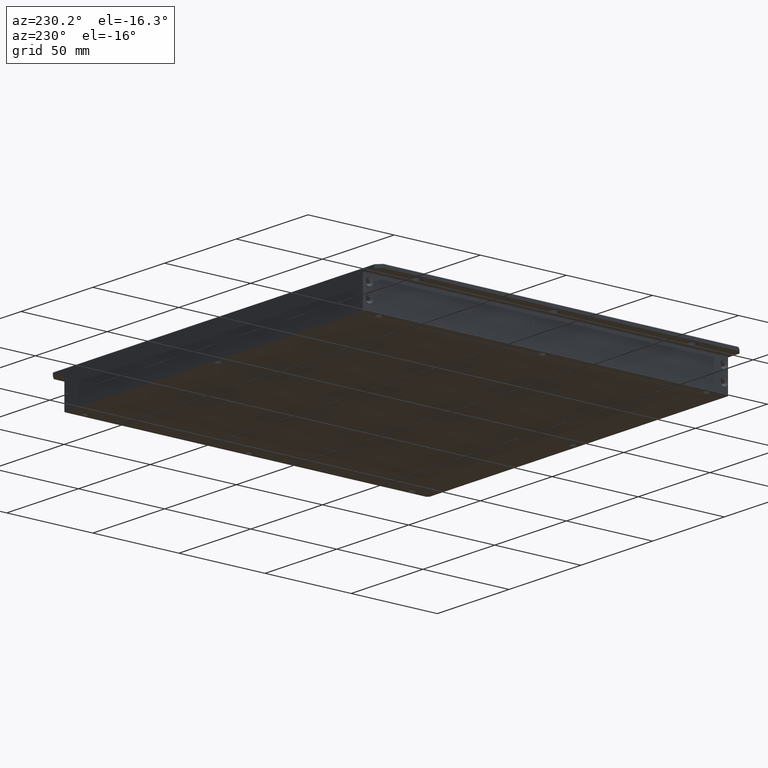
[diagram: clean part render]
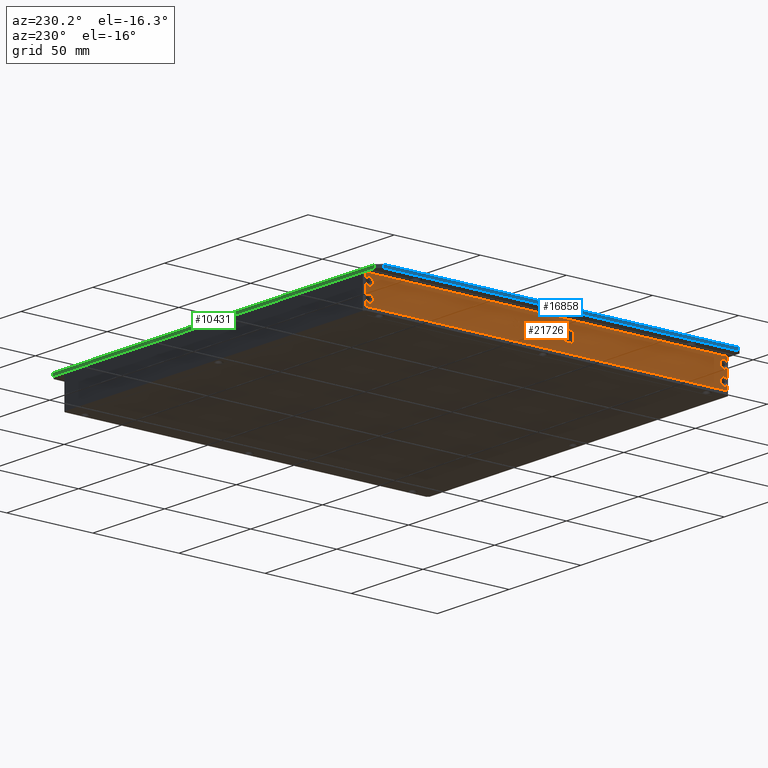
[diagram: same view with three faces highlighted in distinct colors, each labeled with its STEP entity id]
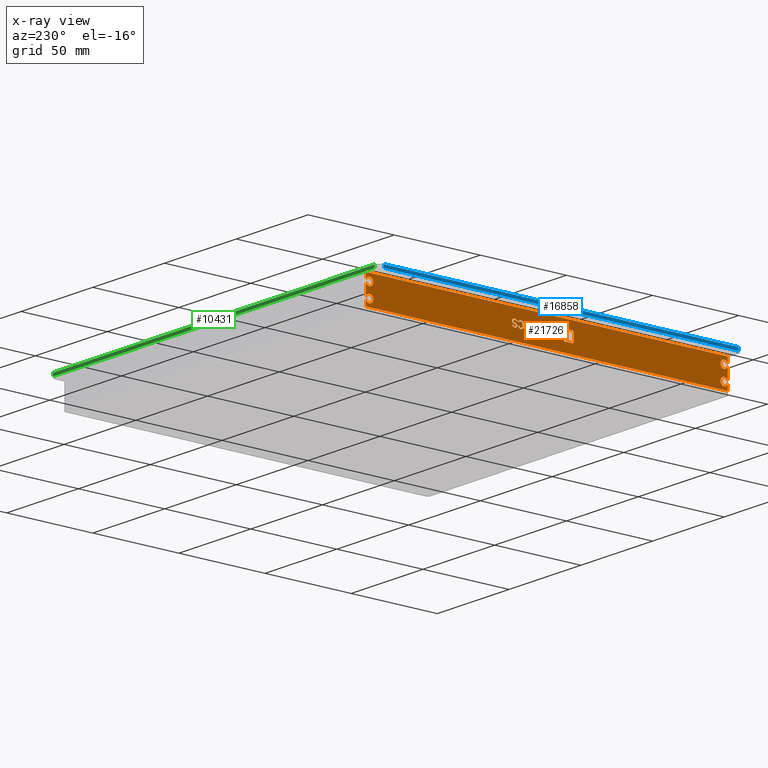
[diagram: x-ray of the same camera — body ghosted, the three highlighted faces saturated]
A machine part, auxiliary view with three faces highlighted in distinct colors.
The next image is the same camera in x-ray (body ghosted, the three faces saturated) — at least one of them is partly hidden behind the body in this view.
Their STEP definitions:

[orange] entity #21726 — the highlighted planar face has unit normal (-1, 0, -0).
#8 = VERTEX_POINT ( 'NONE', #7517 ) ;
#14 = DIRECTION ( 'NONE',  ( 1.000000000000000000, -0.0000000000000000000, 1.130331070474788800E-016 ) ) ;
#16 = EDGE_LOOP ( 'NONE', ( #11320, #12172, #5214, #6119 ) ) ;
#41 = CARTESIAN_POINT ( 'NONE',  ( -86.33424941752386400, -40.84507280835071400, -9.106477243076318100 ) ) ;
#44 = CARTESIAN_POINT ( 'NONE',  ( -86.33424941752386400, -18.87222261905929700, -6.185547010518265900 ) ) ;
#72 = CIRCLE ( 'NONE', #7284, 2.200000000024779500 ) ;
#104 = EDGE_CURVE ( 'NONE', #17682, #6991, #13494, .T. ) ;
#171 = ORIENTED_EDGE ( 'NONE', *, *, #5484, .F. ) ;
#187 = ORIENTED_EDGE ( 'NONE', *, *, #5871, .F. ) ;
#195 = VERTEX_POINT ( 'NONE', #5421 ) ;
#252 = EDGE_CURVE ( 'NONE', #1281, #1068, #10624, .T. ) ;
#266 = B_SPLINE_CURVE_WITH_KNOTS ( 'NONE', 3,
 ( #4110, #14531, #5879, #17957 ),
 .UNSPECIFIED., .F., .F.,
 ( 4, 4 ),
 ( 8.000000000000000000, 9.000000000000000000 ),
 .UNSPECIFIED. ) ;
#269 = CARTESIAN_POINT ( 'NONE',  ( -86.33424941752386400, -18.31083808687994400, -5.596580001324069200 ) ) ;
#344 = DIRECTION ( 'NONE',  ( -1.130331070474788800E-016, 4.782939934548519700E-017, 1.000000000000000000 ) ) ;
#359 = CARTESIAN_POINT ( 'NONE',  ( -86.33424941752386400, -15.35464555037346900, -5.559370698998543900 ) ) ;
#369 = CARTESIAN_POINT ( 'NONE',  ( -86.33424941752386400, -41.22095166178552700, -7.661696280393790000 ) ) ;
#385 = CARTESIAN_POINT ( 'NONE',  ( -86.33424941752386400, -20.13322856822120200, -7.661696280393862900 ) ) ;
#414 = CARTESIAN_POINT ( 'NONE',  ( -86.33424941752386400, -17.62830698898931600, -5.596580001324072700 ) ) ;
#426 = DIRECTION ( 'NONE',  ( -1.130331070474788800E-016, 4.782939934548519700E-017, 1.000000000000000000 ) ) ;
#461 = VECTOR ( 'NONE', #14742, 1000.000000000000000 ) ;
#464 = EDGE_CURVE ( 'NONE', #11444, #13288, #11764, .T. ) ;
#518 = VERTEX_POINT ( 'NONE', #13821 ) ;
#533 = CARTESIAN_POINT ( 'NONE',  ( -86.33424941752386400, -41.18623019072011000, -8.604151661680912600 ) ) ;
#545 = EDGE_CURVE ( 'NONE', #8883, #8027, #12075, .T. ) ;
#555 = VERTEX_POINT ( 'NONE', #15032 ) ;
#601 = CARTESIAN_POINT ( 'NONE',  ( -86.33424941752386400, -14.68347194301822300, -5.596580001324083400 ) ) ;
#637 = LINE ( 'NONE', #12579, #1192 ) ;
#685 = ORIENTED_EDGE ( 'NONE', *, *, #13881, .F. ) ;
#714 = ORIENTED_EDGE ( 'NONE', *, *, #7282, .T. ) ;
#718 = VERTEX_POINT ( 'NONE', #1401 ) ;
#789 = EDGE_CURVE ( 'NONE', #1557, #5702, #9860, .T. ) ;
#807 = VERTEX_POINT ( 'NONE', #5950 ) ;
#823 = EDGE_CURVE ( 'NONE', #22245, #21980, #1896, .T. ) ;
#868 = EDGE_CURVE ( 'NONE', #21415, #16566, #21885, .T. ) ;
#883 = CARTESIAN_POINT ( 'NONE',  ( -86.33424941752386400, -14.01824749737179800, -6.322161396672926000 ) ) ;
#912 = DIRECTION ( 'NONE',  ( 0.0000000000000000000, 1.000000000000000000, -1.577021341779334800E-015 ) ) ;
#918 = ORIENTED_EDGE ( 'NONE', *, *, #14702, .F. ) ;
#972 = CARTESIAN_POINT ( 'NONE',  ( -86.33424941752386400, -36.27449411716632000, -6.136114885044947600 ) ) ;
#985 = FACE_BOUND ( 'NONE', #19514, .T. ) ;
#1002 = EDGE_CURVE ( 'NONE', #807, #518, #2392, .T. ) ;
#1012 = CARTESIAN_POINT ( 'NONE',  ( -86.33424941752386400, -14.00656550710699700, -7.053854203595571800 ) ) ;
#1024 = ORIENTED_EDGE ( 'NONE', *, *, #15780, .F. ) ;
#1068 = VERTEX_POINT ( 'NONE', #18877 ) ;
#1136 = EDGE_CURVE ( 'NONE', #15530, #13090, #16794, .T. ) ;
#1188 = CARTESIAN_POINT ( 'NONE',  ( -86.33424941752386400, -14.00656550710699700, -6.731463722254321900 ) ) ;
#1192 = VECTOR ( 'NONE', #426, 1000.000000000000000 ) ;
#1268 = CARTESIAN_POINT ( 'NONE',  ( -86.33424941752386400, -33.37875398278083600, -16.00000000002367500 ) ) ;
#1281 = VERTEX_POINT ( 'NONE', #11228 ) ;
#1285 = B_SPLINE_CURVE_WITH_KNOTS ( 'NONE', 3,
 ( #7403, #16107, #7475, #19559 ),
 .UNSPECIFIED., .F., .F.,
 ( 4, 4 ),
 ( 1.000000000000000000, 2.000000000000000000 ),
 .UNSPECIFIED. ) ;
#1287 = CARTESIAN_POINT ( 'NONE',  ( -86.33424941752386400, -16.19336918477044300, -8.629138140858978900 ) ) ;
#1298 = CARTESIAN_POINT ( 'NONE',  ( -86.33424941752386400, -48.97701606706152000, -9.426635380003604700 ) ) ;
#1331 = EDGE_CURVE ( 'NONE', #19794, #18739, #2993, .T. ) ;
#1335 = CARTESIAN_POINT ( 'NONE',  ( -86.33424941752386400, -14.28422910905391400, -6.117510233882197400 ) ) ;
#1353 = CARTESIAN_POINT ( 'NONE',  ( -86.33424941752386400, -34.59088135351052500, -7.401231164114729000 ) ) ;
#1368 = CARTESIAN_POINT ( 'NONE',  ( -86.33424941752386400, -14.80494300845902700, -6.117510233882197400 ) ) ;
#1369 = VERTEX_POINT ( 'NONE', #17068 ) ;
#1401 = CARTESIAN_POINT ( 'NONE',  ( -86.33424941752159000, -138.3787539827808100, -4.916515139024154400 ) ) ;
#1406 = CARTESIAN_POINT ( 'NONE',  ( -86.33424941752386400, -28.58568935783713300, -9.670998605975221100 ) ) ;
#1420 = CARTESIAN_POINT ( 'NONE',  ( -86.33424941752386400, -21.43501331673369800, -5.670998605975242400 ) ) ;
#1452 = CARTESIAN_POINT ( 'NONE',  ( -86.33424941752386400, -14.24377480943228800, -7.258505366386294200 ) ) ;
#1466 = CARTESIAN_POINT ( 'NONE',  ( -86.33424941752386400, -13.15605171586875800, -6.787277675742680900 ) ) ;
#1490 = CARTESIAN_POINT ( 'NONE',  ( -86.33424941752386400, -47.88935382910831600, -10.73174529393650700 ) ) ;
#1503 = ORIENTED_EDGE ( 'NONE', *, *, #1331, .F. ) ;
#1529 = EDGE_CURVE ( 'NONE', #195, #22471, #19170, .T. ) ;
#1536 = VERTEX_POINT ( 'NONE', #13163 ) ;
#1557 = VERTEX_POINT ( 'NONE', #21116 ) ;
#1597 = VERTEX_POINT ( 'NONE', #2693 ) ;
#1606 = ORIENTED_EDGE ( 'NONE', *, *, #12521, .T. ) ;
#1616 = VECTOR ( 'NONE', #5517, 1000.000000000000000 ) ;
#1627 = VERTEX_POINT ( 'NONE', #2979 ) ;
#1641 = ORIENTED_EDGE ( 'NONE', *, *, #9026, .T. ) ;
#1643 = EDGE_CURVE ( 'NONE', #1700, #6707, #13534, .T. ) ;
#1676 = EDGE_CURVE ( 'NONE', #14965, #15145, #3462, .T. ) ;
#1700 = VERTEX_POINT ( 'NONE', #6713 ) ;
#1726 = CARTESIAN_POINT ( 'NONE',  ( -86.33424941752386400, -47.88935382910831600, -10.73174529393650700 ) ) ;
#1746 = EDGE_CURVE ( 'NONE', #13288, #16231, #4615, .T. ) ;
#1819 = CARTESIAN_POINT ( 'NONE',  ( -86.33424941752386400, -19.28282294355899400, -7.624486978068219400 ) ) ;
#1825 = CARTESIAN_POINT ( 'NONE',  ( -86.33424941752386400, -39.68790677265576500, -6.123621645455971300 ) ) ;
#1839 = VERTEX_POINT ( 'NONE', #1298 ) ;
#1858 = ORIENTED_EDGE ( 'NONE', *, *, #19866, .F. ) ;
#1871 = DIRECTION ( 'NONE',  ( -0.0000000000000000000, 1.000000000000000000, -5.631151171140671400E-015 ) ) ;
#1885 = CIRCLE ( 'NONE', #10060, 2.200000000007584800 ) ;
#1896 = LINE ( 'NONE', #6092, #1616 ) ;
#1998 = CARTESIAN_POINT ( 'NONE',  ( -86.33424941752386400, -29.80656550710693200, -9.652393954812394500 ) ) ;
#2005 = VERTEX_POINT ( 'NONE', #16001 ) ;
#2016 = EDGE_CURVE ( 'NONE', #1597, #807, #4923, .T. ) ;
#2021 = B_SPLINE_CURVE_WITH_KNOTS ( 'NONE', 3,
 ( #3152, #10273, #22175, #20585 ),
 .UNSPECIFIED., .F., .F.,
 ( 4, 4 ),
 ( 0.0000000000000000000, 1.000000000000000000 ),
 .UNSPECIFIED. ) ;
#2060 = VECTOR ( 'NONE', #11402, 1000.000000000000000 ) ;
#2063 = VERTEX_POINT ( 'NONE', #14226 ) ;
#2085 = CIRCLE ( 'NONE', #12575, 2.200000000007584800 ) ;
#2162 = CARTESIAN_POINT ( 'NONE',  ( -86.33424941752386400, -18.31083808687994400, -5.596580001324069200 ) ) ;
#2177 = VECTOR ( 'NONE', #16561, 1000.000000000000000 ) ;
#2194 = CARTESIAN_POINT ( 'NONE',  ( -86.33424941752386400, -16.69666826535477400, -8.405882326905485900 ) ) ;
#2199 = CARTESIAN_POINT ( 'NONE',  ( -86.33424941752386400, -40.14480239190976400, -5.596580001323993700 ) ) ;
#2242 = VECTOR ( 'NONE', #13709, 1000.000000000000000 ) ;
#2285 = CARTESIAN_POINT ( 'NONE',  ( -86.33424941752386400, -29.18752818963778100, -8.957640033773989400 ) ) ;
#2320 = ORIENTED_EDGE ( 'NONE', *, *, #9748, .F. ) ;
#2336 = AXIS2_PLACEMENT_3D ( 'NONE', #19066, #8714, #20781 ) ;
#2370 = ORIENTED_EDGE ( 'NONE', *, *, #15353, .T. ) ;
#2392 = LINE ( 'NONE', #14602, #461 ) ;
#2454 = VECTOR ( 'NONE', #14363, 1000.000000000000000 ) ;
#2468 = B_SPLINE_CURVE_WITH_KNOTS ( 'NONE', 3,
 ( #601, #12815, #9417, #21478 ),
 .UNSPECIFIED., .F., .F.,
 ( 4, 4 ),
 ( 12.00000000000000000, 13.00000000000000000 ),
 .UNSPECIFIED. ) ;
#2476 = VERTEX_POINT ( 'NONE', #20383 ) ;
#2505 = CARTESIAN_POINT ( 'NONE',  ( -86.33424941752386400, -29.10640325724212500, -7.643091629231007800 ) ) ;
#2517 = DIRECTION ( 'NONE',  ( -0.0000000000000000000, -4.032059971189313800E-015, -1.000000000000000000 ) ) ;
#2667 = ORIENTED_EDGE ( 'NONE', *, *, #19697, .F. ) ;
#2685 = VERTEX_POINT ( 'NONE', #7579 ) ;
#2693 = CARTESIAN_POINT ( 'NONE',  ( -86.33424941752386400, -40.19693868179609100, -9.168673024579778300 ) ) ;
#2731 = CARTESIAN_POINT ( 'NONE',  ( -86.33424941752386400, -48.97701606706150600, -5.853883536039164800 ) ) ;
#2755 = B_SPLINE_CURVE_WITH_KNOTS ( 'NONE', 3,
 ( #8562, #18925, #22380, #12091 ),
 .UNSPECIFIED., .F., .F.,
 ( 4, 4 ),
 ( 1.000000000000000000, 2.000000000000000000 ),
 .UNSPECIFIED. ) ;
#2776 = CARTESIAN_POINT ( 'NONE',  ( -86.33424941752159000, 71.62124601721924900, -11.08348486100282000 ) ) ;
#2846 = FACE_BOUND ( 'NONE', #22187, .T. ) ;
#2855 = VECTOR ( 'NONE', #5904, 1000.000000000000000 ) ;
#2892 = CARTESIAN_POINT ( 'NONE',  ( -86.33424941752386400, -26.97162770288841600, -7.066347443184485000 ) ) ;
#2961 = VERTEX_POINT ( 'NONE', #16702 ) ;
#2977 = DIRECTION ( 'NONE',  ( -5.406305616234845000E-033, -1.000000000000000000, 4.782939934548519700E-017 ) ) ;
#2979 = CARTESIAN_POINT ( 'NONE',  ( -86.33424941752386400, -39.27709011500302000, -6.750068373417054300 ) ) ;
#2993 = B_SPLINE_CURVE_WITH_KNOTS ( 'NONE', 3,
 ( #14850, #14644, #14625, #14920 ),
 .UNSPECIFIED., .F., .F.,
 ( 4, 4 ),
 ( 3.000000000000000000, 4.000000000000000000 ),
 .UNSPECIFIED. ) ;
#3014 = LINE ( 'NONE', #21305, #20909 ) ;
#3117 = DIRECTION ( 'NONE',  ( -0.0000000000000000000, -1.000000000000000000, 2.149513273744100200E-015 ) ) ;
#3151 = AXIS2_PLACEMENT_3D ( 'NONE', #15368, #5014, #17093 ) ;
#3152 = CARTESIAN_POINT ( 'NONE',  ( -86.33424941752386400, -30.96351520964901700, -5.596580001324024800 ) ) ;
#3184 = CARTESIAN_POINT ( 'NONE',  ( -86.33424941752386400, -14.68347194301823000, -8.052393954812457000 ) ) ;
#3195 = CARTESIAN_POINT ( 'NONE',  ( -86.33424941752386400, -23.15323938487889800, -5.670998605975235300 ) ) ;
#3208 = EDGE_CURVE ( 'NONE', #6991, #2063, #5241, .T. ) ;
#3213 = CARTESIAN_POINT ( 'NONE',  ( -86.33424941752386400, -26.97162770288841600, -7.066347443184485000 ) ) ;
#3302 = CARTESIAN_POINT ( 'NONE',  ( -86.33424941752386400, -16.19336918477044300, -8.629138140858978900 ) ) ;
#3403 = CARTESIAN_POINT ( 'NONE',  ( -86.33424941752386400, -14.68347194301823000, -8.052393954812457000 ) ) ;
#3432 = CARTESIAN_POINT ( 'NONE',  ( -86.33424941752386400, -30.96351520964903200, -9.726812559463571300 ) ) ;
#3458 = CARTESIAN_POINT ( 'NONE',  ( -86.33424941752386400, -25.61781483106563000, -8.368673024579862800 ) ) ;
#3462 = B_SPLINE_CURVE_WITH_KNOTS ( 'NONE', 3,
 ( #6414, #4747, #4831, #5220 ),
 .UNSPECIFIED., .F., .F.,
 ( 4, 4 ),
 ( 7.000000000000000000, 8.000000000000000000 ),
 .UNSPECIFIED. ) ;
#3518 = DIRECTION ( 'NONE',  ( -0.0000000000000000000, 1.000000000000000000, -0.0000000000000000000 ) ) ;
#3607 = B_SPLINE_CURVE_WITH_KNOTS ( 'NONE', 3,
 ( #6940, #5232, #15589, #8705 ),
 .UNSPECIFIED., .F., .F.,
 ( 4, 4 ),
 ( 5.000000000000000000, 6.000000000000000000 ),
 .UNSPECIFIED. ) ;
#3608 = CARTESIAN_POINT ( 'NONE',  ( -86.33424941752386400, -23.98633835729625800, -9.112859071091532900 ) ) ;
#3637 = VERTEX_POINT ( 'NONE', #16810 ) ;
#3656 = ORIENTED_EDGE ( 'NONE', *, *, #1002, .F. ) ;
#3736 = ORIENTED_EDGE ( 'NONE', *, *, #9896, .F. ) ;
#3779 = EDGE_CURVE ( 'NONE', #3637, #11444, #6483, .T. ) ;
#3839 = ORIENTED_EDGE ( 'NONE', *, *, #21482, .F. ) ;
#3850 = AXIS2_PLACEMENT_3D ( 'NONE', #10457, #14, #12220 ) ;
#3859 = EDGE_CURVE ( 'NONE', #12032, #8, #20395, .T. ) ;
#3911 = EDGE_CURVE ( 'NONE', #4049, #2961, #21098, .T. ) ;
#3944 = EDGE_CURVE ( 'NONE', #20918, #13325, #18696, .T. ) ;
#3963 = FACE_BOUND ( 'NONE', #16019, .T. ) ;
#3986 = VECTOR ( 'NONE', #5191, 1000.000000000000000 ) ;
#3990 = CARTESIAN_POINT ( 'NONE',  ( -86.33424941752386400, -14.77022153739350500, -9.150068373417104400 ) ) ;
#4049 = VERTEX_POINT ( 'NONE', #9414 ) ;
#4083 = CARTESIAN_POINT ( 'NONE',  ( -86.33424941752386400, -14.71808524750729100, -7.345417210626439300 ) ) ;
#4084 = VECTOR ( 'NONE', #3117, 1000.000000000000000 ) ;
#4110 = CARTESIAN_POINT ( 'NONE',  ( -86.33424941752386400, -18.34555955794549200, -9.726812559463615700 ) ) ;
#4139 = CARTESIAN_POINT ( 'NONE',  ( -86.33424941752386400, -23.98633835729624400, -5.670998605975235300 ) ) ;
#4175 = CARTESIAN_POINT ( 'NONE',  ( -86.33424941752386400, -17.88855577211525000, -9.150068373417093800 ) ) ;
#4211 = EDGE_CURVE ( 'NONE', #1068, #1597, #10146, .T. ) ;
#4247 = CARTESIAN_POINT ( 'NONE',  ( -86.33424941752386400, -30.96351520964903200, -9.726812559463571300 ) ) ;
#4257 = DIRECTION ( 'NONE',  ( -0.0000000000000000000, -4.662069341687617800E-015, -1.000000000000000000 ) ) ;
#4281 = VERTEX_POINT ( 'NONE', #19619 ) ;
#4293 = DIRECTION ( 'NONE',  ( -0.0000000000000000000, 1.000000000000000000, -4.253419582390956600E-015 ) ) ;
#4296 = EDGE_CURVE ( 'NONE', #11995, #10651, #10615, .T. ) ;
#4326 = VERTEX_POINT ( 'NONE', #5807 ) ;
#4469 = EDGE_CURVE ( 'NONE', #17135, #15530, #2021, .T. ) ;
#4489 = CARTESIAN_POINT ( 'NONE',  ( -86.33424941752386400, -42.05405063420265300, -7.680300931556554500 ) ) ;
#4508 = ORIENTED_EDGE ( 'NONE', *, *, #5852, .F. ) ;
#4516 = LINE ( 'NONE', #12099, #3986 ) ;
#4520 = B_SPLINE_CURVE_WITH_KNOTS ( 'NONE', 3,
 ( #7141, #9121, #12619, #2199 ),
 .UNSPECIFIED., .F., .F.,
 ( 4, 4 ),
 ( 11.00000000000000000, 12.00000000000000000 ),
 .UNSPECIFIED. ) ;
#4572 = ORIENTED_EDGE ( 'NONE', *, *, #2016, .F. ) ;
#4615 = B_SPLINE_CURVE_WITH_KNOTS ( 'NONE', 3,
 ( #15860, #19966, #20104, #20036 ),
 .UNSPECIFIED., .F., .F.,
 ( 4, 4 ),
 ( 5.000000000000000000, 6.000000000000000000 ),
 .UNSPECIFIED. ) ;
#4699 = VERTEX_POINT ( 'NONE', #21293 ) ;
#4702 = CARTESIAN_POINT ( 'NONE',  ( -86.33424941752386400, -13.26021612906481600, -8.480300931556678600 ) ) ;
#4708 = CARTESIAN_POINT ( 'NONE',  ( -86.33424941752159000, -138.3787539827807800, -12.91651513902421700 ) ) ;
#4747 = CARTESIAN_POINT ( 'NONE',  ( -86.33424941752386400, -48.97701606706151300, -5.136023614035759800 ) ) ;
#4748 = CARTESIAN_POINT ( 'NONE',  ( -86.33424941751931700, -134.1787539827732900, -12.00000000002366100 ) ) ;
#4749 = EDGE_CURVE ( 'NONE', #13325, #15243, #266, .T. ) ;
#4773 = LINE ( 'NONE', #16395, #9408 ) ;
#4796 = LINE ( 'NONE', #14670, #18049 ) ;
#4804 = CARTESIAN_POINT ( 'NONE',  ( -86.33424941752386400, -25.21857199710132800, -9.670998605975231800 ) ) ;
#4805 = VECTOR ( 'NONE', #2517, 1000.000000000000000 ) ;
#4830 = CARTESIAN_POINT ( 'NONE',  ( -86.33424941752386400, -44.09910007047813700, -10.73174529393652100 ) ) ;
#4831 = CARTESIAN_POINT ( 'NONE',  ( -86.33424941752386400, -48.60731158441611700, -4.766264760138815500 ) ) ;
#4873 = VECTOR ( 'NONE', #6303, 1000.000000000000000 ) ;
#4923 = B_SPLINE_CURVE_WITH_KNOTS ( 'NONE', 3,
 ( #15919, #17778, #15610, #15529 ),
 .UNSPECIFIED., .F., .F.,
 ( 4, 4 ),
 ( 1.000000000000000000, 2.000000000000000000 ),
 .UNSPECIFIED. ) ;
#4941 = DIRECTION ( 'NONE',  ( -0.0000000000000000000, 1.000000000000000000, -4.345622147516879900E-015 ) ) ;
#4978 = EDGE_CURVE ( 'NONE', #5180, #4326, #20248, .T. ) ;
#5014 = DIRECTION ( 'NONE',  ( 1.000000000000000000, -0.0000000000000000000, 1.130331070474788800E-016 ) ) ;
#5105 = CARTESIAN_POINT ( 'NONE',  ( -86.33424941752386400, -26.97162770288842600, -9.670998605975224600 ) ) ;
#5118 = VECTOR ( 'NONE', #18251, 1000.000000000000000 ) ;
#5180 = VERTEX_POINT ( 'NONE', #21191 ) ;
#5191 = DIRECTION ( 'NONE',  ( -0.0000000000000000000, -0.0000000000000000000, -1.000000000000000000 ) ) ;
#5213 = CARTESIAN_POINT ( 'NONE',  ( -86.33424941752386400, -42.00797167260185500, -8.982626512951869200 ) ) ;
#5214 = ORIENTED_EDGE ( 'NONE', *, *, #4469, .F. ) ;
#5220 = CARTESIAN_POINT ( 'NONE',  ( -86.33424941752386400, -47.88935382910830200, -4.766264760138812800 ) ) ;
#5232 = CARTESIAN_POINT ( 'NONE',  ( -86.33424941752386400, -43.38134889043110600, -4.766264760138829700 ) ) ;
#5241 = B_SPLINE_CURVE_WITH_KNOTS ( 'NONE', 3,
 ( #1188, #883, #1335, #1368 ),
 .UNSPECIFIED., .F., .F.,
 ( 4, 4 ),
 ( 2.000000000000000000, 3.000000000000000000 ),
 .UNSPECIFIED. ) ;
#5243 = CARTESIAN_POINT ( 'NONE',  ( -86.33424941752386400, -14.18601385756680600, -8.914319319874648400 ) ) ;
#5279 = VERTEX_POINT ( 'NONE', #8620 ) ;
#5282 = ORIENTED_EDGE ( 'NONE', *, *, #545, .F. ) ;
#5286 = CARTESIAN_POINT ( 'NONE',  ( -86.33424941752386400, -41.38882618855645000, -9.664616777960020500 ) ) ;
#5289 = CARTESIAN_POINT ( 'NONE',  ( -86.33424941752386400, -19.28282294355899400, -7.624486978068219400 ) ) ;
#5382 = CARTESIAN_POINT ( 'NONE',  ( -86.33424941752386400, -35.42398032592809900, -9.670998605975198000 ) ) ;
#5421 = CARTESIAN_POINT ( 'NONE',  ( -86.33424941752386400, -34.59088135351052500, -7.401231164114729000 ) ) ;
#5422 = VERTEX_POINT ( 'NONE', #10683 ) ;
#5425 = B_SPLINE_CURVE_WITH_KNOTS ( 'NONE', 3,
 ( #18137, #17979, #9546, #21614 ),
 .UNSPECIFIED., .F., .F.,
 ( 4, 4 ),
 ( 1.000000000000000000, 2.000000000000000000 ),
 .UNSPECIFIED. ) ;
#5446 = CARTESIAN_POINT ( 'NONE',  ( -86.33424941752386400, -40.19693868179609100, -9.726812559463539300 ) ) ;
#5451 = CARTESIAN_POINT ( 'NONE',  ( -86.33424941752386400, -34.59088135351053200, -9.670998605975199800 ) ) ;
#5484 = EDGE_CURVE ( 'NONE', #13570, #17587, #8712, .T. ) ;
#5494 = CARTESIAN_POINT ( 'NONE',  ( -86.33424941752386400, -14.78752818963825700, -9.726812559463629900 ) ) ;
#5497 = VECTOR ( 'NONE', #5551, 1000.000000000000000 ) ;
#5513 = CARTESIAN_POINT ( 'NONE',  ( -86.33424941752386400, -14.00656550710699700, -6.731463722254321900 ) ) ;
#5517 = DIRECTION ( 'NONE',  ( -0.0000000000000000000, 2.762707758037149500E-015, 1.000000000000000000 ) ) ;
#5538 = EDGE_CURVE ( 'NONE', #17088, #17135, #1285, .T. ) ;
#5551 = DIRECTION ( 'NONE',  ( -0.0000000000000000000, 1.036015409263988700E-014, 1.000000000000000000 ) ) ;
#5553 = DIRECTION ( 'NONE',  ( -0.0000000000000000000, -3.057094650286987300E-015, -1.000000000000000000 ) ) ;
#5582 = CARTESIAN_POINT ( 'NONE',  ( -86.33424941752386400, -15.35464555037348300, -8.976244684936807200 ) ) ;
#5606 = DIRECTION ( 'NONE',  ( -0.0000000000000000000, -0.0000000000000000000, 1.000000000000000000 ) ) ;
#5652 = VERTEX_POINT ( 'NONE', #11279 ) ;
#5662 = ORIENTED_EDGE ( 'NONE', *, *, #4211, .F. ) ;
#5670 = CARTESIAN_POINT ( 'NONE',  ( -86.33424941752386400, -37.12489974182842900, -7.159370698998457300 ) ) ;
#5702 = VERTEX_POINT ( 'NONE', #4489 ) ;
#5737 = CARTESIAN_POINT ( 'NONE',  ( -86.33424941752386400, -42.05405063420265300, -7.680300931556554500 ) ) ;
#5740 = CARTESIAN_POINT ( 'NONE',  ( -86.33424941752386400, -37.43728481484065200, -5.559370698998469300 ) ) ;
#5778 = CARTESIAN_POINT ( 'NONE',  ( -86.33424941752386400, -14.71808524750729100, -7.345417210626439300 ) ) ;
#5807 = CARTESIAN_POINT ( 'NONE',  ( -86.33424941752386400, -38.49601926589563300, -6.489603257137972900 ) ) ;
#5852 = EDGE_CURVE ( 'NONE', #20678, #22407, #12352, .T. ) ;
#5871 = EDGE_CURVE ( 'NONE', #14193, #5279, #20095, .T. ) ;
#5879 = CARTESIAN_POINT ( 'NONE',  ( -86.33424941752386400, -20.07546761635504500, -8.964021861789177600 ) ) ;
#5904 = DIRECTION ( 'NONE',  ( -0.0000000000000000000, 4.032059971189313800E-015, 1.000000000000000000 ) ) ;
#5910 = EDGE_CURVE ( 'NONE', #6667, #22088, #21853, .T. ) ;
#5930 = CARTESIAN_POINT ( 'NONE',  ( -86.33424941752386400, -33.37875398278083600, -8.000000000023666400 ) ) ;
#5932 = VERTEX_POINT ( 'NONE', #6849 ) ;
#5943 = CARTESIAN_POINT ( 'NONE',  ( -86.33424941752386400, -18.29353143463565300, -9.150068373417090200 ) ) ;
#5950 = CARTESIAN_POINT ( 'NONE',  ( -86.33424941752386400, -39.38114636162293900, -8.554719536207715100 ) ) ;
#5992 = B_SPLINE_CURVE_WITH_KNOTS ( 'NONE', 3,
 ( #20701, #13876, #5243, #17311 ),
 .UNSPECIFIED., .F., .F.,
 ( 4, 4 ),
 ( 8.000000000000000000, 9.000000000000000000 ),
 .UNSPECIFIED. ) ;
#5995 = VECTOR ( 'NONE', #16164, 1000.000000000000000 ) ;
#6083 = EDGE_CURVE ( 'NONE', #14568, #9146, #17543, .T. ) ;
#6087 = EDGE_CURVE ( 'NONE', #16566, #16064, #20924, .T. ) ;
#6092 = CARTESIAN_POINT ( 'NONE',  ( -86.33424941752386400, -35.42398032592809200, -7.159370698998464500 ) ) ;
#6119 = ORIENTED_EDGE ( 'NONE', *, *, #5538, .F. ) ;
#6127 = AXIS2_PLACEMENT_3D ( 'NONE', #21649, #11329, #912 ) ;
#6157 = CARTESIAN_POINT ( 'NONE',  ( -86.33424941752386400, -40.38785268936740600, -7.977975350161238500 ) ) ;
#6303 = DIRECTION ( 'NONE',  ( -0.0000000000000000000, 1.000000000000000000, -4.252855617981548900E-015 ) ) ;
#6370 = EDGE_CURVE ( 'NONE', #20228, #18574, #3607, .T. ) ;
#6397 = CARTESIAN_POINT ( 'NONE',  ( -86.33424941752386400, -25.59477535026567100, -7.475649768765888000 ) ) ;
#6414 = CARTESIAN_POINT ( 'NONE',  ( -86.33424941752386400, -48.97701606706150600, -5.853883536039164800 ) ) ;
#6483 = LINE ( 'NONE', #4702, #19213 ) ;
#6508 = EDGE_CURVE ( 'NONE', #18574, #8883, #3014, .T. ) ;
#6514 = CARTESIAN_POINT ( 'NONE',  ( -86.33424941752386400, -21.43501331673371300, -9.670998605975246000 ) ) ;
#6547 = DIRECTION ( 'NONE',  ( -0.0000000000000000000, -1.000000000000000000, 4.208494006535860900E-015 ) ) ;
#6549 = DIRECTION ( 'NONE',  ( -0.0000000000000000000, 6.216092455583725500E-015, 1.000000000000000000 ) ) ;
#6552 = ORIENTED_EDGE ( 'NONE', *, *, #1676, .F. ) ;
#6604 = DIRECTION ( 'NONE',  ( -0.0000000000000000000, 3.469446951953611000E-015, 1.000000000000000000 ) ) ;
#6657 = CARTESIAN_POINT ( 'NONE',  ( -86.33424941752386400, -18.34555955794549200, -9.726812559463615700 ) ) ;
#6663 = LINE ( 'NONE', #18235, #2060 ) ;
#6667 = VERTEX_POINT ( 'NONE', #12489 ) ;
#6687 = CARTESIAN_POINT ( 'NONE',  ( -86.33424941752386400, -17.17703603171472100, -6.408802824471706600 ) ) ;
#6707 = VERTEX_POINT ( 'NONE', #11100 ) ;
#6713 = CARTESIAN_POINT ( 'NONE',  ( -86.33424941752386400, -27.77000520424055500, -7.066347443184485000 ) ) ;
#6716 = EDGE_CURVE ( 'NONE', #15187, #15679, #17388, .T. ) ;
#6762 = CARTESIAN_POINT ( 'NONE',  ( -86.33424941752386400, -39.27709011500302000, -5.596580001323996400 ) ) ;
#6779 = ORIENTED_EDGE ( 'NONE', *, *, #252, .F. ) ;
#6780 = ORIENTED_EDGE ( 'NONE', *, *, #21608, .F. ) ;
#6809 = CARTESIAN_POINT ( 'NONE',  ( -86.33424941752588200, -138.3787539827808100, -11.08348486101286300 ) ) ;
#6849 = CARTESIAN_POINT ( 'NONE',  ( -86.33424941752159000, 71.62124601721924900, -4.916515139044523900 ) ) ;
#6853 = CARTESIAN_POINT ( 'NONE',  ( -86.33424941752386400, -43.01153568396431800, -5.853883536039186100 ) ) ;
#6855 = DIRECTION ( 'NONE',  ( -0.0000000000000000000, -2.762707758037149500E-015, -1.000000000000000000 ) ) ;
#6940 = CARTESIAN_POINT ( 'NONE',  ( -86.33424941752386400, -44.09910007047812300, -4.766264760138822600 ) ) ;
#6975 = CARTESIAN_POINT ( 'NONE',  ( -86.33424941752386400, -39.27709011500302000, -6.750068373417054300 ) ) ;
#6991 = VERTEX_POINT ( 'NONE', #18774 ) ;
#7052 = LINE ( 'NONE', #1268, #16267 ) ;
#7141 = CARTESIAN_POINT ( 'NONE',  ( -86.33424941752386400, -42.05405063420265300, -7.680300931556554500 ) ) ;
#7163 = CARTESIAN_POINT ( 'NONE',  ( -86.33424941751931700, 69.62124601721922100, -12.00000000002367200 ) ) ;
#7232 = CARTESIAN_POINT ( 'NONE',  ( -86.33424941752386400, 71.62124601721924900, -8.000000000023671700 ) ) ;
#7240 = CARTESIAN_POINT ( 'NONE',  ( -86.33424941752386400, -41.18623019072009600, -6.706477243076300000 ) ) ;
#7282 = EDGE_CURVE ( 'NONE', #13217, #21826, #13655, .T. ) ;
#7284 = AXIS2_PLACEMENT_3D ( 'NONE', #7163, #19260, #8930 ) ;
#7286 = CARTESIAN_POINT ( 'NONE',  ( -86.33424941751931700, -136.3787539827808600, -12.00000000002366100 ) ) ;
#7315 = VECTOR ( 'NONE', #5606, 1000.000000000000000 ) ;
#7403 = CARTESIAN_POINT ( 'NONE',  ( -86.33424941752386400, -32.82062716205548000, -7.643091629230997200 ) ) ;
#7424 = CARTESIAN_POINT ( 'NONE',  ( -86.33424941752386400, -37.95799871424621600, -7.364021861789178800 ) ) ;
#7475 = CARTESIAN_POINT ( 'NONE',  ( -86.33424941752386400, -32.14372072614435200, -5.670998605975204200 ) ) ;
#7479 = ORIENTED_EDGE ( 'NONE', *, *, #11211, .F. ) ;
#7497 = FACE_BOUND ( 'NONE', #21526, .T. ) ;
#7512 = CARTESIAN_POINT ( 'NONE',  ( -86.33424941752386400, 71.62124601721924900, -8.000000000023671700 ) ) ;
#7517 = CARTESIAN_POINT ( 'NONE',  ( -86.33424941752386400, -26.97162770288842600, -9.670998605975224600 ) ) ;
#7528 = ORIENTED_EDGE ( 'NONE', *, *, #17540, .F. ) ;
#7533 = ORIENTED_EDGE ( 'NONE', *, *, #4749, .F. ) ;
#7550 = CARTESIAN_POINT ( 'NONE',  ( -86.33424941752386400, -23.15323938487891200, -9.112859071091532900 ) ) ;
#7579 = CARTESIAN_POINT ( 'NONE',  ( -86.33424941752386400, -39.27709011500302700, -7.419835815277479300 ) ) ;
#7611 = ORIENTED_EDGE ( 'NONE', *, *, #8287, .F. ) ;
#7646 = DIRECTION ( 'NONE',  ( 5.406305616234845000E-033, 1.000000000000000000, -4.782939934548519700E-017 ) ) ;
#7670 = CARTESIAN_POINT ( 'NONE',  ( -86.33424941752386400, -13.90835025561944200, -9.701826080285709300 ) ) ;
#7684 = EDGE_CURVE ( 'NONE', #21311, #16070, #10649, .T. ) ;
#7694 = EDGE_CURVE ( 'NONE', #2685, #1627, #14709, .T. ) ;
#7729 = CARTESIAN_POINT ( 'NONE',  ( -86.33424941752386400, -32.82062716205548000, -7.643091629230997200 ) ) ;
#7747 = CARTESIAN_POINT ( 'NONE',  ( -86.33424941752386400, -37.95799871424622300, -9.670998605975187300 ) ) ;
#7779 = DIRECTION ( 'NONE',  ( -0.0000000000000000000, -1.000000000000000000, 4.164507539704090300E-015 ) ) ;
#7920 = EDGE_CURVE ( 'NONE', #10740, #18325, #16029, .T. ) ;
#7926 = ORIENTED_EDGE ( 'NONE', *, *, #8566, .F. ) ;
#7937 = CARTESIAN_POINT ( 'NONE',  ( -86.33424941752386400, -138.3787539827808100, -8.000000000023661100 ) ) ;
#7986 = EDGE_CURVE ( 'NONE', #5422, #12426, #7052, .T. ) ;
#8020 = FACE_BOUND ( 'NONE', #16694, .T. ) ;
#8027 = VERTEX_POINT ( 'NONE', #4830 ) ;
#8072 = EDGE_CURVE ( 'NONE', #8027, #14156, #8396, .T. ) ;
#8109 = ORIENTED_EDGE ( 'NONE', *, *, #6083, .F. ) ;
#8169 = CARTESIAN_POINT ( 'NONE',  ( -86.33424941752386400, -40.19693868179609100, -9.726812559463539300 ) ) ;
#8240 = CARTESIAN_POINT ( 'NONE',  ( -86.33424941752386400, -14.71808524750729100, -7.345417210626439300 ) ) ;
#8254 = EDGE_CURVE ( 'NONE', #13366, #14568, #20532, .T. ) ;
#8287 = EDGE_CURVE ( 'NONE', #10912, #1536, #9757, .T. ) ;
#8304 = CARTESIAN_POINT ( 'NONE',  ( -86.33424941752386400, -21.92100574507339800, -9.112859071091540000 ) ) ;
#8396 = LINE ( 'NONE', #1490, #13021 ) ;
#8405 = ORIENTED_EDGE ( 'NONE', *, *, #18993, .F. ) ;
#8423 = DIRECTION ( 'NONE',  ( -0.0000000000000000000, -1.000000000000000000, 4.252855617981530800E-015 ) ) ;
#8440 = CARTESIAN_POINT ( 'NONE',  ( -86.33424941752386400, -16.78352602630628700, -7.029138140858987200 ) ) ;
#8562 = CARTESIAN_POINT ( 'NONE',  ( -86.33424941752386400, -14.80494300845902700, -6.117510233882197400 ) ) ;
#8566 = EDGE_CURVE ( 'NONE', #15145, #20228, #19152, .T. ) ;
#8568 = EDGE_CURVE ( 'NONE', #16779, #18043, #9964, .T. ) ;
#8578 = CARTESIAN_POINT ( 'NONE',  ( -86.33424941752386400, -13.39910201332640600, -9.286412343130507500 ) ) ;
#8620 = CARTESIAN_POINT ( 'NONE',  ( -86.33424941752386400, -14.68347194301823000, -8.052393954812457000 ) ) ;
#8635 = CARTESIAN_POINT ( 'NONE',  ( -86.33424941752386400, -44.09910007047812300, -4.766264760138822600 ) ) ;
#8705 = CARTESIAN_POINT ( 'NONE',  ( -86.33424941752386400, -43.01153568396431800, -5.853883536039186100 ) ) ;
#8709 = CARTESIAN_POINT ( 'NONE',  ( -86.33424941752386400, -23.15323938487891200, -9.112859071091532900 ) ) ;
#8712 = B_SPLINE_CURVE_WITH_KNOTS ( 'NONE', 3,
 ( #2162, #414, #19348, #14324 ),
 .UNSPECIFIED., .F., .F.,
 ( 4, 4 ),
 ( 6.000000000000000000, 7.000000000000000000 ),
 .UNSPECIFIED. ) ;
#8714 = DIRECTION ( 'NONE',  ( 1.000000000000000000, -0.0000000000000000000, 1.130331070474788800E-016 ) ) ;
#8716 = LINE ( 'NONE', #1406, #4084 ) ;
#8746 = ORIENTED_EDGE ( 'NONE', *, *, #6087, .F. ) ;
#8751 = CARTESIAN_POINT ( 'NONE',  ( -86.33424941752386400, -40.82170882782121200, -6.198040250107151600 ) ) ;
#8760 = CARTESIAN_POINT ( 'NONE',  ( -86.33424941752386400, -18.29353143463565300, -9.150068373417090200 ) ) ;
#8800 = CARTESIAN_POINT ( 'NONE',  ( -86.33424941752386400, -23.98633835729624400, -5.670998605975235300 ) ) ;
#8867 = ORIENTED_EDGE ( 'NONE', *, *, #14599, .F. ) ;
#8883 = VERTEX_POINT ( 'NONE', #22479 ) ;
#8930 = DIRECTION ( 'NONE',  ( 0.0000000000000000000, 1.000000000000000000, -1.577021341779334800E-015 ) ) ;
#8958 = CARTESIAN_POINT ( 'NONE',  ( -86.33424941752386400, -20.13322856822120200, -7.661696280393862900 ) ) ;
#8979 = CARTESIAN_POINT ( 'NONE',  ( -86.33424941752386400, -40.12749573966512200, -6.136114885044930700 ) ) ;
#8991 = DIRECTION ( 'NONE',  ( 1.130331070474788800E-016, -4.782939934548519700E-017, -1.000000000000000000 ) ) ;
#8995 = CARTESIAN_POINT ( 'NONE',  ( -86.33424941752386400, -41.22095166178552700, -7.661696280393790000 ) ) ;
#9024 = ORIENTED_EDGE ( 'NONE', *, *, #21170, .F. ) ;
#9026 = EDGE_CURVE ( 'NONE', #5932, #13217, #13444, .T. ) ;
#9034 = DIRECTION ( 'NONE',  ( 0.0000000000000000000, 1.000000000000000000, -1.577021341791660400E-015 ) ) ;
#9121 = CARTESIAN_POINT ( 'NONE',  ( -86.33424941752386400, -42.00797167260184000, -6.340766047835593600 ) ) ;
#9137 = ORIENTED_EDGE ( 'NONE', *, *, #8254, .F. ) ;
#9146 = VERTEX_POINT ( 'NONE', #19894 ) ;
#9243 = DIRECTION ( 'NONE',  ( -0.0000000000000000000, -3.661440193980266100E-015, -1.000000000000000000 ) ) ;
#9296 = CARTESIAN_POINT ( 'NONE',  ( -86.33424941752386400, -36.29180076941074200, -5.596580001324007000 ) ) ;
#9319 = ORIENTED_EDGE ( 'NONE', *, *, #11507, .F. ) ;
#9327 = B_SPLINE_CURVE_WITH_KNOTS ( 'NONE', 3,
 ( #1287, #21631, #18619, #8240 ),
 .UNSPECIFIED., .F., .F.,
 ( 4, 4 ),
 ( 4.000000000000000000, 5.000000000000000000 ),
 .UNSPECIFIED. ) ;
#9332 = CARTESIAN_POINT ( 'NONE',  ( -86.33424941752386400, -25.60645734053069900, -9.236709801215857500 ) ) ;
#9365 = LINE ( 'NONE', #5382, #17988 ) ;
#9408 = VECTOR ( 'NONE', #4293, 1000.000000000000000 ) ;
#9414 = CARTESIAN_POINT ( 'NONE',  ( -86.33424941752386400, -40.38785268936740600, -7.977975350161238500 ) ) ;
#9417 = CARTESIAN_POINT ( 'NONE',  ( -86.33424941752386400, -13.14469422533293000, -5.993659503757871000 ) ) ;
#9457 = DIRECTION ( 'NONE',  ( -0.0000000000000000000, 1.000000000000000000, -3.661440286475692700E-015 ) ) ;
#9546 = CARTESIAN_POINT ( 'NONE',  ( -86.33424941752386400, -48.97701606706152000, -10.14444094009464900 ) ) ;
#9547 = CARTESIAN_POINT ( 'NONE',  ( -86.33424941751931700, -136.3787539827808600, -12.00000000002366100 ) ) ;
#9625 = CARTESIAN_POINT ( 'NONE',  ( -86.33424941752386400, -35.42398032592809200, -7.159370698998464500 ) ) ;
#9748 = EDGE_CURVE ( 'NONE', #21980, #19794, #20552, .T. ) ;
#9757 = LINE ( 'NONE', #16105, #18929 ) ;
#9766 = ORIENTED_EDGE ( 'NONE', *, *, #10476, .F. ) ;
#9821 = CARTESIAN_POINT ( 'NONE',  ( -86.33424941752386400, -32.82062716205548000, -7.643091629230997200 ) ) ;
#9849 = ORIENTED_EDGE ( 'NONE', *, *, #6370, .F. ) ;
#9860 = B_SPLINE_CURVE_WITH_KNOTS ( 'NONE', 3,
 ( #5446, #5286, #5213, #5737 ),
 .UNSPECIFIED., .F., .F.,
 ( 4, 4 ),
 ( 12.00000000000000000, 13.00000000000000000 ),
 .UNSPECIFIED. ) ;
#9896 = EDGE_CURVE ( 'NONE', #22407, #14385, #13105, .T. ) ;
#9935 = ORIENTED_EDGE ( 'NONE', *, *, #7920, .T. ) ;
#9964 = LINE ( 'NONE', #7550, #4805 ) ;
#10008 = ORIENTED_EDGE ( 'NONE', *, *, #3859, .F. ) ;
#10023 = CARTESIAN_POINT ( 'NONE',  ( -86.33424941751931700, -136.3787539827808600, -4.000000000023662800 ) ) ;
#10057 = EDGE_CURVE ( 'NONE', #1369, #12185, #14120, .T. ) ;
#10060 = AXIS2_PLACEMENT_3D ( 'NONE', #10023, #22080, #11787 ) ;
#10069 = CARTESIAN_POINT ( 'NONE',  ( -86.33424941752386400, -16.78352602630628700, -7.029138140858987200 ) ) ;
#10106 = ORIENTED_EDGE ( 'NONE', *, *, #10191, .F. ) ;
#10113 = CARTESIAN_POINT ( 'NONE',  ( -86.33424941752386400, -25.21857199710132500, -9.112859071091525800 ) ) ;
#10146 = B_SPLINE_CURVE_WITH_KNOTS ( 'NONE', 3,
 ( #369, #533, #41, #21294 ),
 .UNSPECIFIED., .F., .F.,
 ( 4, 4 ),
 ( 2.000000000000000000, 3.000000000000000000 ),
 .UNSPECIFIED. ) ;
#10185 = CARTESIAN_POINT ( 'NONE',  ( -86.33424941752386400, -18.11992407930818100, -6.136114885045007100 ) ) ;
#10191 = EDGE_CURVE ( 'NONE', #4326, #4281, #4796, .T. ) ;
#10228 = CARTESIAN_POINT ( 'NONE',  ( -86.33424941752386400, -39.27709011500302700, -7.419835815277479300 ) ) ;
#10262 = CARTESIAN_POINT ( 'NONE',  ( -86.33424941752386400, -38.72760390624186000, -5.894254419928676800 ) ) ;
#10273 = CARTESIAN_POINT ( 'NONE',  ( -86.33424941752386400, -29.78330969315368300, -5.670998605975214900 ) ) ;
#10314 = ORIENTED_EDGE ( 'NONE', *, *, #19628, .T. ) ;
#10385 = ORIENTED_EDGE ( 'NONE', *, *, #3944, .F. ) ;
#10411 = CARTESIAN_POINT ( 'NONE',  ( -86.33424941752386400, -40.38785268936740600, -7.419835815277476600 ) ) ;
#10415 = CARTESIAN_POINT ( 'NONE',  ( -86.33424941752386400, -15.36632754063850100, -8.318970482665344300 ) ) ;
#10446 = EDGE_CURVE ( 'NONE', #2476, #5932, #14286, .T. ) ;
#10457 = CARTESIAN_POINT ( 'NONE',  ( -86.33424941751931700, -136.3787539827808600, -4.000000000023662800 ) ) ;
#10463 = LINE ( 'NONE', #10069, #19103 ) ;
#10476 = EDGE_CURVE ( 'NONE', #2063, #13366, #2755, .T. ) ;
#10481 = DIRECTION ( 'NONE',  ( -0.0000000000000000000, -0.0000000000000000000, 1.000000000000000000 ) ) ;
#10584 = ORIENTED_EDGE ( 'NONE', *, *, #19995, .F. ) ;
#10592 = VERTEX_POINT ( 'NONE', #8800 ) ;
#10604 = CARTESIAN_POINT ( 'NONE',  ( -86.33424941752386400, -34.59088135351053200, -9.670998605975199800 ) ) ;
#10615 = LINE ( 'NONE', #16374, #5995 ) ;
#10624 = B_SPLINE_CURVE_WITH_KNOTS ( 'NONE', 3,
 ( #8979, #8751, #7240, #8995 ),
 .UNSPECIFIED., .F., .F.,
 ( 4, 4 ),
 ( 3.000000000000000000, 4.000000000000000000 ),
 .UNSPECIFIED. ) ;
#10649 = CIRCLE ( 'NONE', #15723, 2.200000000007584800 ) ;
#10651 = VERTEX_POINT ( 'NONE', #13965 ) ;
#10683 = CARTESIAN_POINT ( 'NONE',  ( -86.33424941752386400, 71.62124601721924900, -16.00000000002368200 ) ) ;
#10700 = CARTESIAN_POINT ( 'NONE',  ( -86.33424941752386400, -19.46800412257487900, -5.658775782827637700 ) ) ;
#10740 = VERTEX_POINT ( 'NONE', #14787 ) ;
#10774 = CARTESIAN_POINT ( 'NONE',  ( -86.33424941752386400, -39.27709011500302000, -6.750068373417054300 ) ) ;
#10803 = CARTESIAN_POINT ( 'NONE',  ( -86.33424941752386400, -14.77022153739350500, -9.150068373417104400 ) ) ;
#10810 = ORIENTED_EDGE ( 'NONE', *, *, #3208, .F. ) ;
#10837 = EDGE_CURVE ( 'NONE', #555, #1700, #12873, .T. ) ;
#10912 = VERTEX_POINT ( 'NONE', #1420 ) ;
#10934 = DIRECTION ( 'NONE',  ( 1.130331070474788800E-016, -4.782939934548519700E-017, -1.000000000000000000 ) ) ;
#11010 = VECTOR ( 'NONE', #15276, 1000.000000000000000 ) ;
#11080 = LINE ( 'NONE', #7512, #20223 ) ;
#11100 = CARTESIAN_POINT ( 'NONE',  ( -86.33424941752386400, -26.97162770288841600, -7.066347443184485000 ) ) ;
#11154 = ORIENTED_EDGE ( 'NONE', *, *, #4978, .F. ) ;
#11211 = EDGE_CURVE ( 'NONE', #16064, #20306, #11386, .T. ) ;
#11228 = CARTESIAN_POINT ( 'NONE',  ( -86.33424941752386400, -40.12749573966512200, -6.136114885044930700 ) ) ;
#11279 = CARTESIAN_POINT ( 'NONE',  ( -86.33424941752386400, -20.61922099656078400, -9.670998605975249500 ) ) ;
#11295 = DIRECTION ( 'NONE',  ( 0.0000000000000000000, 1.000000000000000000, 0.0000000000000000000 ) ) ;
#11320 = ORIENTED_EDGE ( 'NONE', *, *, #15323, .F. ) ;
#11325 = CARTESIAN_POINT ( 'NONE',  ( -86.33424941752386400, 71.62124601721924900, -8.000000000023671700 ) ) ;
#11329 = DIRECTION ( 'NONE',  ( 1.000000000000000000, -0.0000000000000000000, 1.130331070474788800E-016 ) ) ;
#11386 = B_SPLINE_CURVE_WITH_KNOTS ( 'NONE', 3,
 ( #19617, #12710, #5740, #9296 ),
 .UNSPECIFIED., .F., .F.,
 ( 4, 4 ),
 ( 9.000000000000000000, 10.00000000000000000 ),
 .UNSPECIFIED. ) ;
#11387 = CARTESIAN_POINT ( 'NONE',  ( -86.33424941752386400, -35.68433727563036200, -6.111128405867023400 ) ) ;
#11402 = DIRECTION ( 'NONE',  ( -0.0000000000000000000, 1.000000000000000000, -0.0000000000000000000 ) ) ;
#11444 = VERTEX_POINT ( 'NONE', #11790 ) ;
#11507 = EDGE_CURVE ( 'NONE', #5652, #15512, #12058, .T. ) ;
#11525 = B_SPLINE_CURVE_WITH_KNOTS ( 'NONE', 3,
 ( #8958, #17547, #10700, #269 ),
 .UNSPECIFIED., .F., .F.,
 ( 4, 4 ),
 ( 7.000000000000000000, 8.000000000000000000 ),
 .UNSPECIFIED. ) ;
#11535 = ORIENTED_EDGE ( 'NONE', *, *, #823, .F. ) ;
#11539 = CARTESIAN_POINT ( 'NONE',  ( -86.33424941752386400, -38.51343408471664300, -8.554719536207718600 ) ) ;
#11622 = ORIENTED_EDGE ( 'NONE', *, *, #104, .F. ) ;
#11758 = CARTESIAN_POINT ( 'NONE',  ( -86.33424941752386400, -34.53312040164435400, -6.136114885044951200 ) ) ;
#11764 = B_SPLINE_CURVE_WITH_KNOTS ( 'NONE', 3,
 ( #18191, #8578, #7670, #5494 ),
 .UNSPECIFIED., .F., .F.,
 ( 4, 4 ),
 ( 6.000000000000000000, 7.000000000000000000 ),
 .UNSPECIFIED. ) ;
#11771 = VECTOR ( 'NONE', #21248, 1000.000000000000000 ) ;
#11787 = DIRECTION ( 'NONE',  ( 0.0000000000000000000, 1.000000000000000000, 0.0000000000000000000 ) ) ;
#11790 = CARTESIAN_POINT ( 'NONE',  ( -86.33424941752386400, -13.26021612906481600, -8.480300931556678600 ) ) ;
#11792 = VECTOR ( 'NONE', #6547, 1000.000000000000000 ) ;
#11886 = CARTESIAN_POINT ( 'NONE',  ( -86.33424941752386400, -13.15605171586876100, -7.419835815277569900 ) ) ;
#11893 = EDGE_CURVE ( 'NONE', #20306, #195, #18150, .T. ) ;
#11909 = DIRECTION ( 'NONE',  ( -0.0000000000000000000, -1.000000000000000000, 3.661440286475692700E-015 ) ) ;
#11919 = ORIENTED_EDGE ( 'NONE', *, *, #12031, .T. ) ;
#11943 = VECTOR ( 'NONE', #10481, 1000.000000000000000 ) ;
#11958 = CARTESIAN_POINT ( 'NONE',  ( -86.33424941752386400, -40.14480239190976400, -5.596580001323993700 ) ) ;
#11995 = VERTEX_POINT ( 'NONE', #17222 ) ;
#12002 = B_SPLINE_CURVE_WITH_KNOTS ( 'NONE', 3,
 ( #3403, #20651, #10415, #22468 ),
 .UNSPECIFIED., .F., .F.,
 ( 4, 4 ),
 ( 10.00000000000000000, 11.00000000000000000 ),
 .UNSPECIFIED. ) ;
#12017 = ORIENTED_EDGE ( 'NONE', *, *, #17592, .F. ) ;
#12031 = EDGE_CURVE ( 'NONE', #18325, #2005, #12363, .T. ) ;
#12032 = VERTEX_POINT ( 'NONE', #3458 ) ;
#12058 = LINE ( 'NONE', #20576, #21204 ) ;
#12075 = B_SPLINE_CURVE_WITH_KNOTS ( 'NONE', 3,
 ( #12996, #13204, #13517, #14441 ),
 .UNSPECIFIED., .F., .F.,
 ( 4, 4 ),
 ( 3.000000000000000000, 4.000000000000000000 ),
 .UNSPECIFIED. ) ;
#12091 = CARTESIAN_POINT ( 'NONE',  ( -86.33424941752386400, -16.28022694572218000, -7.047742792021755200 ) ) ;
#12099 = CARTESIAN_POINT ( 'NONE',  ( -86.33424941752386400, -21.92100574507339800, -9.670998605975246000 ) ) ;
#12128 = FACE_BOUND ( 'NONE', #16, .T. ) ;
#12133 = EDGE_CURVE ( 'NONE', #12426, #21311, #637, .T. ) ;
#12160 = CIRCLE ( 'NONE', #2336, 2.200000000024779500 ) ;
#12172 = ORIENTED_EDGE ( 'NONE', *, *, #1136, .F. ) ;
#12185 = VERTEX_POINT ( 'NONE', #3990 ) ;
#12193 = ORIENTED_EDGE ( 'NONE', *, *, #7986, .T. ) ;
#12202 = VECTOR ( 'NONE', #6604, 1000.000000000000000 ) ;
#12220 = DIRECTION ( 'NONE',  ( 0.0000000000000000000, 1.000000000000000000, -1.971276677239575500E-015 ) ) ;
#12248 = CARTESIAN_POINT ( 'NONE',  ( -86.33424941752386400, -19.25967529618233700, -6.681761180339747400 ) ) ;
#12281 = LINE ( 'NONE', #12614, #2454 ) ;
#12288 = EDGE_CURVE ( 'NONE', #22471, #22245, #9365, .T. ) ;
#12352 = LINE ( 'NONE', #4804, #11792 ) ;
#12363 = LINE ( 'NONE', #13869, #15854 ) ;
#12413 = VECTOR ( 'NONE', #19378, 1000.000000000000000 ) ;
#12426 = VERTEX_POINT ( 'NONE', #13847 ) ;
#12436 = EDGE_CURVE ( 'NONE', #4699, #15187, #14713, .T. ) ;
#12445 = CARTESIAN_POINT ( 'NONE',  ( -86.33424941752386400, -36.29180076941074200, -5.596580001324007000 ) ) ;
#12458 = ORIENTED_EDGE ( 'NONE', *, *, #13972, .F. ) ;
#12489 = CARTESIAN_POINT ( 'NONE',  ( -86.33424941752386400, -16.78352602630628700, -7.029138140858987200 ) ) ;
#12521 = EDGE_CURVE ( 'NONE', #21826, #18192, #72, .T. ) ;
#12575 = AXIS2_PLACEMENT_3D ( 'NONE', #9547, #21615, #11295 ) ;
#12579 = CARTESIAN_POINT ( 'NONE',  ( -86.33424941752386400, -138.3787539827807500, -8.000000000023661100 ) ) ;
#12606 = CARTESIAN_POINT ( 'NONE',  ( -86.33424941752386400, -25.61781483106563000, -8.368673024579862800 ) ) ;
#12614 = CARTESIAN_POINT ( 'NONE',  ( -86.33424941752386400, -48.97701606706150600, -5.853883536039164800 ) ) ;
#12619 = CARTESIAN_POINT ( 'NONE',  ( -86.33424941752386400, -41.37141136973565400, -5.646282543238543300 ) ) ;
#12645 = VERTEX_POINT ( 'NONE', #21361 ) ;
#12682 = ORIENTED_EDGE ( 'NONE', *, *, #12288, .F. ) ;
#12710 = CARTESIAN_POINT ( 'NONE',  ( -86.33424941752386400, -37.99272018531175400, -6.148337708192604700 ) ) ;
#12736 = LINE ( 'NONE', #18718, #12202 ) ;
#12807 = B_SPLINE_CURVE_WITH_KNOTS ( 'NONE', 3,
 ( #4247, #14662, #18087, #7729 ),
 .UNSPECIFIED., .F., .F.,
 ( 4, 4 ),
 ( 2.000000000000000000, 3.000000000000000000 ),
 .UNSPECIFIED. ) ;
#12815 = CARTESIAN_POINT ( 'NONE',  ( -86.33424941752386400, -13.65372613447302200, -5.596580001324087000 ) ) ;
#12873 = LINE ( 'NONE', #13403, #17448 ) ;
#12937 = CARTESIAN_POINT ( 'NONE',  ( -86.33424941752386400, -37.95799871424622300, -9.670998605975187300 ) ) ;
#12980 = ORIENTED_EDGE ( 'NONE', *, *, #8568, .F. ) ;
#12996 = CARTESIAN_POINT ( 'NONE',  ( -86.33424941752386400, -43.01153568396432500, -9.644137390418878300 ) ) ;
#13021 = VECTOR ( 'NONE', #11909, 1000.000000000000000 ) ;
#13080 = VECTOR ( 'NONE', #344, 1000.000000000000000 ) ;
#13090 = VERTEX_POINT ( 'NONE', #16009 ) ;
#13103 = EDGE_CURVE ( 'NONE', #1839, #14965, #12281, .T. ) ;
#13105 = LINE ( 'NONE', #10113, #21751 ) ;
#13163 = CARTESIAN_POINT ( 'NONE',  ( -86.33424941752386400, -20.61922099656077000, -5.670998605975246000 ) ) ;
#13204 = CARTESIAN_POINT ( 'NONE',  ( -86.33424941752386400, -43.01153568396433300, -10.36214952577587100 ) ) ;
#13217 = VERTEX_POINT ( 'NONE', #2776 ) ;
#13238 = ORIENTED_EDGE ( 'NONE', *, *, #12133, .T. ) ;
#13288 = VERTEX_POINT ( 'NONE', #21994 ) ;
#13325 = VERTEX_POINT ( 'NONE', #6657 ) ;
#13334 = CARTESIAN_POINT ( 'NONE',  ( -86.33424941752386400, -38.76805820586305600, -9.336114885044919400 ) ) ;
#13366 = VERTEX_POINT ( 'NONE', #15599 ) ;
#13403 = CARTESIAN_POINT ( 'NONE',  ( -86.33424941752386400, -27.77000520424055500, -7.066347443184485000 ) ) ;
#13444 = LINE ( 'NONE', #7232, #22052 ) ;
#13486 = EDGE_CURVE ( 'NONE', #14926, #10740, #1885, .T. ) ;
#13494 = B_SPLINE_CURVE_WITH_KNOTS ( 'NONE', 3,
 ( #5778, #1452, #1012, #5513 ),
 .UNSPECIFIED., .F., .F.,
 ( 4, 4 ),
 ( 3.000000000000000000, 4.000000000000000000 ),
 .UNSPECIFIED. ) ;
#13512 = ORIENTED_EDGE ( 'NONE', *, *, #1746, .F. ) ;
#13517 = CARTESIAN_POINT ( 'NONE',  ( -86.33424941752386400, -43.38134889043112000, -10.73174529393651600 ) ) ;
#13534 = LINE ( 'NONE', #3213, #17562 ) ;
#13543 = CARTESIAN_POINT ( 'NONE',  ( -86.33424941752386400, -21.92100574507339800, -9.670998605975246000 ) ) ;
#13570 = VERTEX_POINT ( 'NONE', #15457 ) ;
#13607 = CARTESIAN_POINT ( 'NONE',  ( -86.33424941752386400, -13.66540812473827200, -7.841360964006633500 ) ) ;
#13636 = LINE ( 'NONE', #19426, #13080 ) ;
#13655 = CIRCLE ( 'NONE', #6127, 2.200000000024779500 ) ;
#13709 = DIRECTION ( 'NONE',  ( -0.0000000000000000000, 1.000000000000000000, -3.123482040200149800E-015 ) ) ;
#13758 = ORIENTED_EDGE ( 'NONE', *, *, #1529, .F. ) ;
#13770 = CARTESIAN_POINT ( 'NONE',  ( -86.33424941752386400, -37.12489974182843600, -9.670998605975190900 ) ) ;
#13790 = DIRECTION ( 'NONE',  ( 5.406305616234845000E-033, 1.000000000000000000, -4.782939934548519700E-017 ) ) ;
#13821 = CARTESIAN_POINT ( 'NONE',  ( -86.33424941752386400, -38.51343408471664300, -8.554719536207718600 ) ) ;
#13847 = CARTESIAN_POINT ( 'NONE',  ( -86.33424941752386400, -138.3787539827807500, -16.00000000002366100 ) ) ;
#13850 = CARTESIAN_POINT ( 'NONE',  ( -86.33424941752386400, -25.21857199710132800, -9.670998605975231800 ) ) ;
#13869 = CARTESIAN_POINT ( 'NONE',  ( -86.33424941752386400, -33.37875398278083600, -2.364948514799181100E-011 ) ) ;
#13876 = CARTESIAN_POINT ( 'NONE',  ( -86.33424941752386400, -14.42311499331584700, -9.137575133828141500 ) ) ;
#13881 = EDGE_CURVE ( 'NONE', #9146, #14193, #2468, .T. ) ;
#13965 = CARTESIAN_POINT ( 'NONE',  ( -86.33424941752386400, -28.58568935783711900, -5.670998605975217500 ) ) ;
#13972 = EDGE_CURVE ( 'NONE', #16231, #17682, #9327, .T. ) ;
#13987 = CARTESIAN_POINT ( 'NONE',  ( -86.33424941752386400, -40.12749573966512200, -6.136114885044930700 ) ) ;
#14039 = ORIENTED_EDGE ( 'NONE', *, *, #7684, .T. ) ;
#14069 = VECTOR ( 'NONE', #21644, 1000.000000000000000 ) ;
#14120 = B_SPLINE_CURVE_WITH_KNOTS ( 'NONE', 3,
 ( #19396, #5582, #21138, #10803 ),
 .UNSPECIFIED., .F., .F.,
 ( 4, 4 ),
 ( 9.000000000000000000, 10.00000000000000000 ),
 .UNSPECIFIED. ) ;
#14139 = CARTESIAN_POINT ( 'NONE',  ( -86.33424941752386400, -26.05762013122848900, -9.670998605975228200 ) ) ;
#14148 = EDGE_CURVE ( 'NONE', #12185, #3637, #5992, .T. ) ;
#14156 = VERTEX_POINT ( 'NONE', #1726 ) ;
#14193 = VERTEX_POINT ( 'NONE', #17390 ) ;
#14226 = CARTESIAN_POINT ( 'NONE',  ( -86.33424941752386400, -14.80494300845902700, -6.117510233882197400 ) ) ;
#14286 = CIRCLE ( 'NONE', #3151, 2.200000000024779500 ) ;
#14324 = CARTESIAN_POINT ( 'NONE',  ( -86.33424941752386400, -16.78352602630628400, -6.266347443184556300 ) ) ;
#14333 = CARTESIAN_POINT ( 'NONE',  ( -86.33424941752159000, 71.62124601721924900, -12.91651513904452600 ) ) ;
#14351 = LINE ( 'NONE', #6157, #5118 ) ;
#14352 = CARTESIAN_POINT ( 'NONE',  ( -86.33424941752386400, -15.88693327346724100, -5.807612992129906000 ) ) ;
#14363 = DIRECTION ( 'NONE',  ( -0.0000000000000000000, 3.884341374355074700E-015, 1.000000000000000000 ) ) ;
#14370 = ORIENTED_EDGE ( 'NONE', *, *, #464, .F. ) ;
#14385 = VERTEX_POINT ( 'NONE', #16334 ) ;
#14402 = DIRECTION ( 'NONE',  ( -0.0000000000000000000, 1.000000000000000000, -4.252855617981530800E-015 ) ) ;
#14421 = EDGE_CURVE ( 'NONE', #16070, #18002, #2085, .T. ) ;
#14425 = ORIENTED_EDGE ( 'NONE', *, *, #10446, .T. ) ;
#14441 = CARTESIAN_POINT ( 'NONE',  ( -86.33424941752386400, -44.09910007047813700, -10.73174529393652100 ) ) ;
#14531 = CARTESIAN_POINT ( 'NONE',  ( -86.33424941752386400, -19.47968611283991400, -9.652393954812430000 ) ) ;
#14568 = VERTEX_POINT ( 'NONE', #22037 ) ;
#14585 = VECTOR ( 'NONE', #1871, 1000.000000000000000 ) ;
#14591 = VECTOR ( 'NONE', #9457, 1000.000000000000000 ) ;
#14599 = EDGE_CURVE ( 'NONE', #8, #11995, #8716, .T. ) ;
#14602 = CARTESIAN_POINT ( 'NONE',  ( -86.33424941752386400, -38.51343408471664300, -8.554719536207718600 ) ) ;
#14608 = LINE ( 'NONE', #11325, #14069 ) ;
#14609 = VECTOR ( 'NONE', #5553, 1000.000000000000000 ) ;
#14625 = CARTESIAN_POINT ( 'NONE',  ( -86.33424941752386400, -37.12489974182842200, -6.477110017549014400 ) ) ;
#14644 = CARTESIAN_POINT ( 'NONE',  ( -86.33424941752386400, -36.84150331132551800, -6.136114885044944100 ) ) ;
#14662 = CARTESIAN_POINT ( 'NONE',  ( -86.33424941752386400, -32.14372072614436600, -9.677110017549013700 ) ) ;
#14670 = CARTESIAN_POINT ( 'NONE',  ( -86.33424941752386400, -38.49601926589564000, -7.977975350161245600 ) ) ;
#14702 = EDGE_CURVE ( 'NONE', #18739, #21415, #18165, .T. ) ;
#14709 = LINE ( 'NONE', #10774, #5497 ) ;
#14713 = B_SPLINE_CURVE_WITH_KNOTS ( 'NONE', 3,
 ( #5289, #15650, #19111, #8760 ),
 .UNSPECIFIED., .F., .F.,
 ( 4, 4 ),
 ( 2.000000000000000000, 3.000000000000000000 ),
 .UNSPECIFIED. ) ;
#14742 = DIRECTION ( 'NONE',  ( -0.0000000000000000000, 1.000000000000000000, -3.998384077638535600E-015 ) ) ;
#14787 = CARTESIAN_POINT ( 'NONE',  ( -86.33424941752588200, -138.3787539827808100, -3.083484861012861800 ) ) ;
#14821 = CARTESIAN_POINT ( 'NONE',  ( -86.33424941751931700, -134.1787539827732900, -4.000000000023662800 ) ) ;
#14847 = ORIENTED_EDGE ( 'NONE', *, *, #11893, .F. ) ;
#14850 = CARTESIAN_POINT ( 'NONE',  ( -86.33424941752386400, -36.27449411716632000, -6.136114885044947600 ) ) ;
#14920 = CARTESIAN_POINT ( 'NONE',  ( -86.33424941752386400, -37.12489974182842900, -7.159370698998457300 ) ) ;
#14926 = VERTEX_POINT ( 'NONE', #14821 ) ;
#14965 = VERTEX_POINT ( 'NONE', #2731 ) ;
#14989 = B_SPLINE_CURVE_WITH_KNOTS ( 'NONE', 3,
 ( #6975, #19092, #1825, #13987 ),
 .UNSPECIFIED., .F., .F.,
 ( 4, 4 ),
 ( 4.000000000000000000, 5.000000000000000000 ),
 .UNSPECIFIED. ) ;
#15032 = CARTESIAN_POINT ( 'NONE',  ( -86.33424941752386400, -27.77000520424055500, -5.670998605975221100 ) ) ;
#15051 = CARTESIAN_POINT ( 'NONE',  ( -86.33424941752386400, -35.42398032592809900, -9.670998605975198000 ) ) ;
#15070 = ORIENTED_EDGE ( 'NONE', *, *, #14421, .T. ) ;
#15128 = ORIENTED_EDGE ( 'NONE', *, *, #18455, .F. ) ;
#15133 = CARTESIAN_POINT ( 'NONE',  ( -86.33424941752386400, -37.95799871424621600, -7.364021861789178800 ) ) ;
#15145 = VERTEX_POINT ( 'NONE', #20819 ) ;
#15187 = VERTEX_POINT ( 'NONE', #20972 ) ;
#15243 = VERTEX_POINT ( 'NONE', #385 ) ;
#15276 = DIRECTION ( 'NONE',  ( -0.0000000000000000000, 1.000000000000000000, -5.631151171138625800E-015 ) ) ;
#15323 = EDGE_CURVE ( 'NONE', #13090, #17088, #12807, .T. ) ;
#15353 = EDGE_CURVE ( 'NONE', #18192, #5422, #14608, .T. ) ;
#15368 = CARTESIAN_POINT ( 'NONE',  ( -86.33424941751931700, 69.62124601721922100, -4.000000000023672600 ) ) ;
#15431 = B_SPLINE_CURVE_WITH_KNOTS ( 'NONE', 3,
 ( #11539, #13334, #18535, #8169 ),
 .UNSPECIFIED., .F., .F.,
 ( 4, 4 ),
 ( 13.00000000000000000, 14.00000000000000000 ),
 .UNSPECIFIED. ) ;
#15457 = CARTESIAN_POINT ( 'NONE',  ( -86.33424941752386400, -18.31083808687994400, -5.596580001324069200 ) ) ;
#15512 = VERTEX_POINT ( 'NONE', #6514 ) ;
#15529 = CARTESIAN_POINT ( 'NONE',  ( -86.33424941752386400, -39.38114636162293900, -8.554719536207715100 ) ) ;
#15530 = VERTEX_POINT ( 'NONE', #22061 ) ;
#15589 = CARTESIAN_POINT ( 'NONE',  ( -86.33424941752386400, -43.01153568396431800, -5.136023614035782000 ) ) ;
#15597 = CARTESIAN_POINT ( 'NONE',  ( -86.33424941752386400, -17.51246058552769500, -8.405882326905482300 ) ) ;
#15598 = LINE ( 'NONE', #8304, #11010 ) ;
#15599 = CARTESIAN_POINT ( 'NONE',  ( -86.33424941752386400, -16.28022694572218000, -7.047742792021755200 ) ) ;
#15610 = CARTESIAN_POINT ( 'NONE',  ( -86.33424941752386400, -39.50867475534915500, -8.964021861789111900 ) ) ;
#15650 = CARTESIAN_POINT ( 'NONE',  ( -86.33424941752386400, -19.27135728644714200, -8.616644901269950200 ) ) ;
#15679 = VERTEX_POINT ( 'NONE', #15597 ) ;
#15699 = ORIENTED_EDGE ( 'NONE', *, *, #18170, .T. ) ;
#15723 = AXIS2_PLACEMENT_3D ( 'NONE', #7286, #19367, #9034 ) ;
#15780 = EDGE_CURVE ( 'NONE', #15243, #13570, #11525, .T. ) ;
#15850 = CARTESIAN_POINT ( 'NONE',  ( -86.33424941752386400, -20.61922099656078400, -9.670998605975249500 ) ) ;
#15854 = VECTOR ( 'NONE', #13790, 1000.000000000000000 ) ;
#15860 = CARTESIAN_POINT ( 'NONE',  ( -86.33424941752386400, -14.78752818963825700, -9.726812559463629900 ) ) ;
#15919 = CARTESIAN_POINT ( 'NONE',  ( -86.33424941752386400, -40.19693868179609100, -9.168673024579778300 ) ) ;
#15966 = CARTESIAN_POINT ( 'NONE',  ( -86.33424941752386400, -16.28022694572218000, -6.340766047835683300 ) ) ;
#15987 = CARTESIAN_POINT ( 'NONE',  ( -86.33424941752386400, -36.27449411716632000, -6.136114885044947600 ) ) ;
#16001 = CARTESIAN_POINT ( 'NONE',  ( -86.33424941752386400, 71.62124601721924900, -2.366162821232364900E-011 ) ) ;
#16009 = CARTESIAN_POINT ( 'NONE',  ( -86.33424941752386400, -30.96351520964903200, -9.726812559463571300 ) ) ;
#16019 = EDGE_LOOP ( 'NONE', ( #10385, #17118, #18174, #18766, #19801, #20616, #21459, #171, #1024, #7533 ) ) ;
#16029 = LINE ( 'NONE', #7937, #2177 ) ;
#16062 = CARTESIAN_POINT ( 'NONE',  ( -86.33424941752386400, -16.28022694572218000, -6.340766047835683300 ) ) ;
#16064 = VERTEX_POINT ( 'NONE', #15133 ) ;
#16070 = VERTEX_POINT ( 'NONE', #4748 ) ;
#16104 = EDGE_CURVE ( 'NONE', #18043, #17941, #15598, .T. ) ;
#16105 = CARTESIAN_POINT ( 'NONE',  ( -86.33424941752386400, -20.61922099656077000, -5.670998605975246000 ) ) ;
#16107 = CARTESIAN_POINT ( 'NONE',  ( -86.33424941752386400, -32.76286621018964200, -6.352988870983295100 ) ) ;
#16158 = EDGE_CURVE ( 'NONE', #17587, #6667, #10463, .T. ) ;
#16164 = DIRECTION ( 'NONE',  ( -0.0000000000000000000, 3.469446951953611000E-015, 1.000000000000000000 ) ) ;
#16165 = LINE ( 'NONE', #4139, #2855 ) ;
#16231 = VERTEX_POINT ( 'NONE', #3302 ) ;
#16233 = ORIENTED_EDGE ( 'NONE', *, *, #1643, .F. ) ;
#16267 = VECTOR ( 'NONE', #2977, 1000.000000000000000 ) ;
#16282 = EDGE_CURVE ( 'NONE', #718, #14926, #19360, .T. ) ;
#16334 = CARTESIAN_POINT ( 'NONE',  ( -86.33424941752386400, -25.21857199710132500, -9.112859071091525800 ) ) ;
#16374 = CARTESIAN_POINT ( 'NONE',  ( -86.33424941752386400, -28.58568935783711900, -5.670998605975217500 ) ) ;
#16395 = CARTESIAN_POINT ( 'NONE',  ( -86.33424941752386400, -27.77000520424055500, -5.670998605975221100 ) ) ;
#16399 = ORIENTED_EDGE ( 'NONE', *, *, #20092, .F. ) ;
#16561 = DIRECTION ( 'NONE',  ( -1.130331070474788800E-016, 4.782939934548519700E-017, 1.000000000000000000 ) ) ;
#16566 = VERTEX_POINT ( 'NONE', #12937 ) ;
#16670 = CARTESIAN_POINT ( 'NONE',  ( -86.33424941752386400, -16.69666826535477400, -8.405882326905485900 ) ) ;
#16688 = FACE_BOUND ( 'NONE', #18978, .T. ) ;
#16694 = EDGE_LOOP ( 'NONE', ( #6780, #7611, #8405, #9319 ) ) ;
#16702 = CARTESIAN_POINT ( 'NONE',  ( -86.33424941752386400, -40.38785268936740600, -7.419835815277476600 ) ) ;
#16770 = CARTESIAN_POINT ( 'NONE',  ( -86.33424941752386400, -26.04604630753981800, -7.041360964006564400 ) ) ;
#16779 = VERTEX_POINT ( 'NONE', #3195 ) ;
#16789 = DIRECTION ( 'NONE',  ( -0.0000000000000000000, -0.0000000000000000000, -1.000000000000000000 ) ) ;
#16794 = B_SPLINE_CURVE_WITH_KNOTS ( 'NONE', 3,
 ( #2505, #2285, #1998, #3432 ),
 .UNSPECIFIED., .F., .F.,
 ( 4, 4 ),
 ( 3.000000000000000000, 4.000000000000000000 ),
 .UNSPECIFIED. ) ;
#16810 = CARTESIAN_POINT ( 'NONE',  ( -86.33424941752386400, -14.05859363041662600, -8.480300931556675100 ) ) ;
#16961 = LINE ( 'NONE', #15850, #12413 ) ;
#16974 = LINE ( 'NONE', #3608, #14585 ) ;
#17050 = ORIENTED_EDGE ( 'NONE', *, *, #10837, .F. ) ;
#17068 = CARTESIAN_POINT ( 'NONE',  ( -86.33424941752386400, -15.34296356010845700, -8.629138140858982500 ) ) ;
#17088 = VERTEX_POINT ( 'NONE', #9821 ) ;
#17093 = DIRECTION ( 'NONE',  ( 0.0000000000000000000, 1.000000000000000000, -1.971276677224168200E-015 ) ) ;
#17118 = ORIENTED_EDGE ( 'NONE', *, *, #18887, .F. ) ;
#17135 = VERTEX_POINT ( 'NONE', #18564 ) ;
#17222 = CARTESIAN_POINT ( 'NONE',  ( -86.33424941752386400, -28.58568935783713300, -9.670998605975221100 ) ) ;
#17311 = CARTESIAN_POINT ( 'NONE',  ( -86.33424941752386400, -14.05859363041662600, -8.480300931556675100 ) ) ;
#17388 = B_SPLINE_CURVE_WITH_KNOTS ( 'NONE', 3,
 ( #5943, #4175, #21419, #18012 ),
 .UNSPECIFIED., .F., .F.,
 ( 4, 4 ),
 ( 1.000000000000000000, 2.000000000000000000 ),
 .UNSPECIFIED. ) ;
#17390 = CARTESIAN_POINT ( 'NONE',  ( -86.33424941752386400, -13.15605171586875800, -6.787277675742680900 ) ) ;
#17448 = VECTOR ( 'NONE', #16789, 1000.000000000000000 ) ;
#17540 = EDGE_CURVE ( 'NONE', #1627, #1281, #14989, .T. ) ;
#17543 = B_SPLINE_CURVE_WITH_KNOTS ( 'NONE', 3,
 ( #16062, #14352, #359, #17775 ),
 .UNSPECIFIED., .F., .F.,
 ( 4, 4 ),
 ( 13.00000000000000000, 14.00000000000000000 ),
 .UNSPECIFIED. ) ;
#17547 = CARTESIAN_POINT ( 'NONE',  ( -86.33424941752386400, -20.07546761635503400, -6.346877459409475900 ) ) ;
#17562 = VECTOR ( 'NONE', #3518, 1000.000000000000000 ) ;
#17581 = ORIENTED_EDGE ( 'NONE', *, *, #19301, .T. ) ;
#17587 = VERTEX_POINT ( 'NONE', #20968 ) ;
#17592 = EDGE_CURVE ( 'NONE', #5702, #5180, #4520, .T. ) ;
#17620 = VECTOR ( 'NONE', #6855, 1000.000000000000000 ) ;
#17682 = VERTEX_POINT ( 'NONE', #4083 ) ;
#17775 = CARTESIAN_POINT ( 'NONE',  ( -86.33424941752386400, -14.68347194301822300, -5.596580001324083400 ) ) ;
#17778 = CARTESIAN_POINT ( 'NONE',  ( -86.33424941752386400, -39.78038919558725400, -9.168673024579781800 ) ) ;
#17840 = ORIENTED_EDGE ( 'NONE', *, *, #19917, .F. ) ;
#17935 = PLANE ( 'NONE',  #21525 ) ;
#17941 = VERTEX_POINT ( 'NONE', #18613 ) ;
#17957 = CARTESIAN_POINT ( 'NONE',  ( -86.33424941752386400, -20.13322856822120200, -7.661696280393862900 ) ) ;
#17979 = CARTESIAN_POINT ( 'NONE',  ( -86.33424941752386400, -48.60731158441612400, -10.73174529393650700 ) ) ;
#17988 = VECTOR ( 'NONE', #20375, 1000.000000000000000 ) ;
#17994 = EDGE_CURVE ( 'NONE', #2961, #2685, #20644, .T. ) ;
#18000 = DIRECTION ( 'NONE',  ( -1.000000000000000000, 0.0000000000000000000, -1.130331070474788800E-016 ) ) ;
#18002 = VERTEX_POINT ( 'NONE', #6809 ) ;
#18012 = CARTESIAN_POINT ( 'NONE',  ( -86.33424941752386400, -17.51246058552769500, -8.405882326905482300 ) ) ;
#18043 = VERTEX_POINT ( 'NONE', #8709 ) ;
#18049 = VECTOR ( 'NONE', #4257, 1000.000000000000000 ) ;
#18087 = CARTESIAN_POINT ( 'NONE',  ( -86.33424941752386400, -32.76286621018965700, -8.982626512951903000 ) ) ;
#18137 = CARTESIAN_POINT ( 'NONE',  ( -86.33424941752386400, -47.88935382910831600, -10.73174529393650700 ) ) ;
#18150 = B_SPLINE_CURVE_WITH_KNOTS ( 'NONE', 3,
 ( #20315, #18609, #11758, #1353 ),
 .UNSPECIFIED., .F., .F.,
 ( 4, 4 ),
 ( 8.000000000000000000, 9.000000000000000000 ),
 .UNSPECIFIED. ) ;
#18165 = LINE ( 'NONE', #13770, #17620 ) ;
#18170 = EDGE_CURVE ( 'NONE', #18002, #718, #13636, .T. ) ;
#18174 = ORIENTED_EDGE ( 'NONE', *, *, #6716, .F. ) ;
#18190 = ORIENTED_EDGE ( 'NONE', *, *, #16282, .T. ) ;
#18191 = CARTESIAN_POINT ( 'NONE',  ( -86.33424941752386400, -13.26021612906481600, -8.480300931556678600 ) ) ;
#18192 = VERTEX_POINT ( 'NONE', #14333 ) ;
#18235 = CARTESIAN_POINT ( 'NONE',  ( -86.33424941752386400, -23.15323938487889800, -5.670998605975235300 ) ) ;
#18251 = DIRECTION ( 'NONE',  ( -0.0000000000000000000, -1.000000000000000000, 3.667814416331344700E-015 ) ) ;
#18297 = B_SPLINE_CURVE_WITH_KNOTS ( 'NONE', 3,
 ( #2892, #16770, #6397, #18503 ),
 .UNSPECIFIED., .F., .F.,
 ( 4, 4 ),
 ( 6.000000000000000000, 7.000000000000000000 ),
 .UNSPECIFIED. ) ;
#18306 = CARTESIAN_POINT ( 'NONE',  ( -86.33424941751931700, 67.42124601719444900, -12.00000000002367200 ) ) ;
#18325 = VERTEX_POINT ( 'NONE', #19850 ) ;
#18427 = EDGE_LOOP ( 'NONE', ( #6552, #19172, #22354, #20401, #5282, #19846, #9849, #7926 ) ) ;
#18455 = EDGE_CURVE ( 'NONE', #6707, #12032, #18297, .T. ) ;
#18503 = CARTESIAN_POINT ( 'NONE',  ( -86.33424941752386400, -25.61781483106563000, -8.368673024579862800 ) ) ;
#18535 = CARTESIAN_POINT ( 'NONE',  ( -86.33424941752386400, -39.32911823831321400, -9.726812559463542800 ) ) ;
#18564 = CARTESIAN_POINT ( 'NONE',  ( -86.33424941752386400, -30.96351520964901700, -5.596580001324024800 ) ) ;
#18574 = VERTEX_POINT ( 'NONE', #6853 ) ;
#18609 = CARTESIAN_POINT ( 'NONE',  ( -86.33424941752386400, -35.10023776237980500, -5.534654636261845600 ) ) ;
#18613 = CARTESIAN_POINT ( 'NONE',  ( -86.33424941752386400, -21.92100574507339800, -9.112859071091540000 ) ) ;
#18614 = VERTEX_POINT ( 'NONE', #20742 ) ;
#18619 = CARTESIAN_POINT ( 'NONE',  ( -86.33424941752386400, -15.78287702684767000, -7.531463722254337700 ) ) ;
#18681 = ORIENTED_EDGE ( 'NONE', *, *, #4296, .F. ) ;
#18682 = LINE ( 'NONE', #16670, #4873 ) ;
#18683 = ORIENTED_EDGE ( 'NONE', *, *, #7694, .F. ) ;
#18696 = B_SPLINE_CURVE_WITH_KNOTS ( 'NONE', 3,
 ( #2194, #19587, #19233, #19081 ),
 .UNSPECIFIED., .F., .F.,
 ( 4, 4 ),
 ( 9.000000000000000000, 10.00000000000000000 ),
 .UNSPECIFIED. ) ;
#18718 = CARTESIAN_POINT ( 'NONE',  ( -86.33424941752386400, -21.43501331673369800, -5.670998605975242400 ) ) ;
#18722 = B_SPLINE_CURVE_WITH_KNOTS ( 'NONE', 3,
 ( #20808, #44, #12248, #1819 ),
 .UNSPECIFIED., .F., .F.,
 ( 4, 4 ),
 ( 3.000000000000000000, 4.000000000000000000 ),
 .UNSPECIFIED. ) ;
#18739 = VERTEX_POINT ( 'NONE', #5670 ) ;
#18766 = ORIENTED_EDGE ( 'NONE', *, *, #12436, .F. ) ;
#18774 = CARTESIAN_POINT ( 'NONE',  ( -86.33424941752386400, -14.00656550710699700, -6.731463722254321900 ) ) ;
#18784 = CARTESIAN_POINT ( 'NONE',  ( -86.33424941752386400, -37.12489974182843600, -9.670998605975190900 ) ) ;
#18877 = CARTESIAN_POINT ( 'NONE',  ( -86.33424941752386400, -41.22095166178552700, -7.661696280393790000 ) ) ;
#18887 = EDGE_CURVE ( 'NONE', #15679, #20918, #18682, .T. ) ;
#18925 = CARTESIAN_POINT ( 'NONE',  ( -86.33424941752386400, -15.36027021235320000, -6.129733057029860700 ) ) ;
#18929 = VECTOR ( 'NONE', #14402, 1000.000000000000000 ) ;
#18978 = EDGE_LOOP ( 'NONE', ( #15128, #16233, #17050, #17840, #18681, #8867, #10008 ) ) ;
#18993 = EDGE_CURVE ( 'NONE', #15512, #10912, #12736, .T. ) ;
#19066 = CARTESIAN_POINT ( 'NONE',  ( -86.33424941751931700, 69.62124601721922100, -4.000000000023672600 ) ) ;
#19081 = CARTESIAN_POINT ( 'NONE',  ( -86.33424941752386400, -18.34555955794549200, -9.726812559463615700 ) ) ;
#19092 = CARTESIAN_POINT ( 'NONE',  ( -86.33424941752386400, -39.40451034215264100, -6.328272808246641300 ) ) ;
#19103 = VECTOR ( 'NONE', #20389, 1000.000000000000000 ) ;
#19111 = CARTESIAN_POINT ( 'NONE',  ( -86.33424941752386400, -18.94166556119027300, -9.125081894239162500 ) ) ;
#19152 = LINE ( 'NONE', #21515, #14591 ) ;
#19170 = LINE ( 'NONE', #10604, #14609 ) ;
#19172 = ORIENTED_EDGE ( 'NONE', *, *, #13103, .F. ) ;
#19213 = VECTOR ( 'NONE', #4941, 1000.000000000000000 ) ;
#19233 = CARTESIAN_POINT ( 'NONE',  ( -86.33424941752386400, -17.43166015286136500, -9.714319319874601200 ) ) ;
#19260 = DIRECTION ( 'NONE',  ( 1.000000000000000000, -0.0000000000000000000, 1.130331070474788800E-016 ) ) ;
#19278 = CARTESIAN_POINT ( 'NONE',  ( -86.33424941752386400, -18.11992407930818100, -6.136114885045007100 ) ) ;
#19301 = EDGE_CURVE ( 'NONE', #2005, #18614, #11080, .T. ) ;
#19348 = CARTESIAN_POINT ( 'NONE',  ( -86.33424941752386400, -17.11927507984922800, -5.819835815277566700 ) ) ;
#19360 = CIRCLE ( 'NONE', #3850, 2.200000000007584800 ) ;
#19367 = DIRECTION ( 'NONE',  ( 1.000000000000000000, -0.0000000000000000000, 1.130331070474788800E-016 ) ) ;
#19378 = DIRECTION ( 'NONE',  ( -0.0000000000000000000, -3.469446951953611000E-015, -1.000000000000000000 ) ) ;
#19396 = CARTESIAN_POINT ( 'NONE',  ( -86.33424941752386400, -15.34296356010845700, -8.629138140858982500 ) ) ;
#19426 = CARTESIAN_POINT ( 'NONE',  ( -86.33424941752386400, -138.3787539827808100, -8.000000000023661100 ) ) ;
#19472 = ORIENTED_EDGE ( 'NONE', *, *, #17994, .F. ) ;
#19508 = ORIENTED_EDGE ( 'NONE', *, *, #16104, .F. ) ;
#19514 = EDGE_LOOP ( 'NONE', ( #8109, #9137, #9766, #10810, #11622, #12458, #13512, #14370, #19975, #20765, #21357, #22126, #187, #685 ) ) ;
#19559 = CARTESIAN_POINT ( 'NONE',  ( -86.33424941752386400, -30.96351520964901700, -5.596580001324024800 ) ) ;
#19587 = CARTESIAN_POINT ( 'NONE',  ( -86.33424941752386400, -16.88195761094692000, -9.273919103541478700 ) ) ;
#19617 = CARTESIAN_POINT ( 'NONE',  ( -86.33424941752386400, -37.95799871424621600, -7.364021861789178800 ) ) ;
#19619 = CARTESIAN_POINT ( 'NONE',  ( -86.33424941752386400, -38.49601926589564000, -7.977975350161245600 ) ) ;
#19628 = EDGE_CURVE ( 'NONE', #18614, #2476, #12160, .T. ) ;
#19697 = EDGE_CURVE ( 'NONE', #14385, #12645, #16974, .T. ) ;
#19714 = VECTOR ( 'NONE', #7779, 1000.000000000000000 ) ;
#19794 = VERTEX_POINT ( 'NONE', #15987 ) ;
#19801 = ORIENTED_EDGE ( 'NONE', *, *, #21521, .F. ) ;
#19846 = ORIENTED_EDGE ( 'NONE', *, *, #6508, .F. ) ;
#19850 = CARTESIAN_POINT ( 'NONE',  ( -86.33424941752385000, -138.3787539827807800, -2.364428097756388100E-011 ) ) ;
#19866 = EDGE_CURVE ( 'NONE', #12645, #10592, #16165, .T. ) ;
#19894 = CARTESIAN_POINT ( 'NONE',  ( -86.33424941752386400, -14.68347194301822300, -5.596580001324083400 ) ) ;
#19898 = EDGE_CURVE ( 'NONE', #14156, #1839, #5425, .T. ) ;
#19917 = EDGE_CURVE ( 'NONE', #10651, #555, #4773, .T. ) ;
#19966 = CARTESIAN_POINT ( 'NONE',  ( -86.33424941752386400, -15.69007010418656200, -9.714319319874608300 ) ) ;
#19975 = ORIENTED_EDGE ( 'NONE', *, *, #3779, .F. ) ;
#19995 = EDGE_CURVE ( 'NONE', #10592, #16779, #6663, .T. ) ;
#20036 = CARTESIAN_POINT ( 'NONE',  ( -86.33424941752386400, -16.19336918477044300, -8.629138140858978900 ) ) ;
#20092 = EDGE_CURVE ( 'NONE', #518, #1557, #15431, .T. ) ;
#20095 = B_SPLINE_CURVE_WITH_KNOTS ( 'NONE', 3,
 ( #1466, #11886, #13607, #3184 ),
 .UNSPECIFIED., .F., .F.,
 ( 4, 4 ),
 ( 11.00000000000000000, 12.00000000000000000 ),
 .UNSPECIFIED. ) ;
#20104 = CARTESIAN_POINT ( 'NONE',  ( -86.33424941752386400, -16.15864771370491200, -9.348337708192662600 ) ) ;
#20223 = VECTOR ( 'NONE', #10934, 1000.000000000000000 ) ;
#20228 = VERTEX_POINT ( 'NONE', #8635 ) ;
#20248 = B_SPLINE_CURVE_WITH_KNOTS ( 'NONE', 3,
 ( #11958, #6762, #10262, #22312 ),
 .UNSPECIFIED., .F., .F.,
 ( 4, 4 ),
 ( 10.00000000000000000, 11.00000000000000000 ),
 .UNSPECIFIED. ) ;
#20306 = VERTEX_POINT ( 'NONE', #12445 ) ;
#20315 = CARTESIAN_POINT ( 'NONE',  ( -86.33424941752386400, -36.29180076941074200, -5.596580001324007000 ) ) ;
#20375 = DIRECTION ( 'NONE',  ( -0.0000000000000000000, -1.000000000000000000, 4.164507539705200300E-015 ) ) ;
#20383 = CARTESIAN_POINT ( 'NONE',  ( -86.33424941751931700, 67.42124601719444900, -4.000000000023672600 ) ) ;
#20389 = DIRECTION ( 'NONE',  ( -0.0000000000000000000, -4.548360333353747000E-015, -1.000000000000000000 ) ) ;
#20395 = B_SPLINE_CURVE_WITH_KNOTS ( 'NONE', 3,
 ( #12606, #9332, #14139, #5105 ),
 .UNSPECIFIED., .F., .F.,
 ( 4, 4 ),
 ( 5.000000000000000000, 6.000000000000000000 ),
 .UNSPECIFIED. ) ;
#20401 = ORIENTED_EDGE ( 'NONE', *, *, #8072, .F. ) ;
#20426 = EDGE_LOOP ( 'NONE', ( #3839, #19508, #12980, #10584, #1858, #2667, #3736, #4508 ) ) ;
#20512 = CARTESIAN_POINT ( 'NONE',  ( -86.33424941752386400, -17.62257416043322400, -6.111128405867085600 ) ) ;
#20532 = LINE ( 'NONE', #15966, #7315 ) ;
#20552 = B_SPLINE_CURVE_WITH_KNOTS ( 'NONE', 3,
 ( #9625, #21707, #11387, #972 ),
 .UNSPECIFIED., .F., .F.,
 ( 4, 4 ),
 ( 4.000000000000000000, 5.000000000000000000 ),
 .UNSPECIFIED. ) ;
#20576 = CARTESIAN_POINT ( 'NONE',  ( -86.33424941752386400, -21.43501331673371300, -9.670998605975246000 ) ) ;
#20585 = CARTESIAN_POINT ( 'NONE',  ( -86.33424941752386400, -29.10640325724212500, -7.643091629231007800 ) ) ;
#20616 = ORIENTED_EDGE ( 'NONE', *, *, #5910, .F. ) ;
#20644 = LINE ( 'NONE', #10228, #2242 ) ;
#20651 = CARTESIAN_POINT ( 'NONE',  ( -86.33424941752386400, -15.14631672398070900, -8.126812559463635600 ) ) ;
#20678 = VERTEX_POINT ( 'NONE', #13543 ) ;
#20701 = CARTESIAN_POINT ( 'NONE',  ( -86.33424941752386400, -14.77022153739350500, -9.150068373417104400 ) ) ;
#20724 = FACE_OUTER_BOUND ( 'NONE', #20833, .T. ) ;
#20742 = CARTESIAN_POINT ( 'NONE',  ( -86.33424941752159000, 71.62124601721924900, -3.083484861002817800 ) ) ;
#20765 = ORIENTED_EDGE ( 'NONE', *, *, #14148, .F. ) ;
#20781 = DIRECTION ( 'NONE',  ( 0.0000000000000000000, 1.000000000000000000, -1.971276677224168200E-015 ) ) ;
#20808 = CARTESIAN_POINT ( 'NONE',  ( -86.33424941752386400, -18.11992407930818100, -6.136114885045007100 ) ) ;
#20819 = CARTESIAN_POINT ( 'NONE',  ( -86.33424941752386400, -47.88935382910830200, -4.766264760138812800 ) ) ;
#20833 = EDGE_LOOP ( 'NONE', ( #714, #1606, #2370, #12193, #13238, #14039, #15070, #15699, #18190, #21228, #9935, #11919, #17581, #10314, #14425, #1641 ) ) ;
#20907 = CARTESIAN_POINT ( 'NONE',  ( -86.33424941752386400, -16.69666826535477400, -8.405882326905485900 ) ) ;
#20909 = VECTOR ( 'NONE', #9243, 1000.000000000000000 ) ;
#20918 = VERTEX_POINT ( 'NONE', #20907 ) ;
#20924 = LINE ( 'NONE', #7424, #11771 ) ;
#20968 = CARTESIAN_POINT ( 'NONE',  ( -86.33424941752386400, -16.78352602630628400, -6.266347443184556300 ) ) ;
#20972 = CARTESIAN_POINT ( 'NONE',  ( -86.33424941752386400, -18.29353143463565300, -9.150068373417090200 ) ) ;
#21098 = LINE ( 'NONE', #10411, #11943 ) ;
#21116 = CARTESIAN_POINT ( 'NONE',  ( -86.33424941752386400, -40.19693868179609100, -9.726812559463539300 ) ) ;
#21138 = CARTESIAN_POINT ( 'NONE',  ( -86.33424941752386400, -15.16373154280194200, -9.150068373417097300 ) ) ;
#21170 = EDGE_CURVE ( 'NONE', #4281, #4049, #14351, .T. ) ;
#21191 = CARTESIAN_POINT ( 'NONE',  ( -86.33424941752386400, -40.14480239190976400, -5.596580001323993700 ) ) ;
#21204 = VECTOR ( 'NONE', #8423, 1000.000000000000000 ) ;
#21228 = ORIENTED_EDGE ( 'NONE', *, *, #13486, .T. ) ;
#21248 = DIRECTION ( 'NONE',  ( -0.0000000000000000000, 3.007786672056611400E-015, 1.000000000000000000 ) ) ;
#21283 = FACE_BOUND ( 'NONE', #18427, .T. ) ;
#21293 = CARTESIAN_POINT ( 'NONE',  ( -86.33424941752386400, -19.28282294355899400, -7.624486978068219400 ) ) ;
#21294 = CARTESIAN_POINT ( 'NONE',  ( -86.33424941752386400, -40.19693868179609100, -9.168673024579778300 ) ) ;
#21305 = CARTESIAN_POINT ( 'NONE',  ( -86.33424941752386400, -43.01153568396433300, -9.644137390418885400 ) ) ;
#21311 = VERTEX_POINT ( 'NONE', #4708 ) ;
#21357 = ORIENTED_EDGE ( 'NONE', *, *, #10057, .F. ) ;
#21361 = CARTESIAN_POINT ( 'NONE',  ( -86.33424941752386400, -23.98633835729625800, -9.112859071091532900 ) ) ;
#21376 = ORIENTED_EDGE ( 'NONE', *, *, #3911, .F. ) ;
#21415 = VERTEX_POINT ( 'NONE', #18784 ) ;
#21419 = CARTESIAN_POINT ( 'NONE',  ( -86.33424941752386400, -17.62830698898932600, -8.901826080285674800 ) ) ;
#21459 = ORIENTED_EDGE ( 'NONE', *, *, #16158, .F. ) ;
#21478 = CARTESIAN_POINT ( 'NONE',  ( -86.33424941752386400, -13.15605171586875800, -6.787277675742680900 ) ) ;
#21482 = EDGE_CURVE ( 'NONE', #17941, #20678, #4516, .T. ) ;
#21486 = EDGE_CURVE ( 'NONE', #5279, #1369, #12002, .T. ) ;
#21515 = CARTESIAN_POINT ( 'NONE',  ( -86.33424941752386400, -44.09910007047812300, -4.766264760138826200 ) ) ;
#21521 = EDGE_CURVE ( 'NONE', #22088, #4699, #18722, .T. ) ;
#21525 = AXIS2_PLACEMENT_3D ( 'NONE', #5930, #18000, #7646 ) ;
#21526 = EDGE_LOOP ( 'NONE', ( #7479, #8746, #22308, #918, #1503, #2320, #11535, #12682, #13758, #14847 ) ) ;
#21608 = EDGE_CURVE ( 'NONE', #1536, #5652, #16961, .T. ) ;
#21614 = CARTESIAN_POINT ( 'NONE',  ( -86.33424941752386400, -48.97701606706152000, -9.426635380003604700 ) ) ;
#21615 = DIRECTION ( 'NONE',  ( 1.000000000000000000, -0.0000000000000000000, 1.130331070474788800E-016 ) ) ;
#21631 = CARTESIAN_POINT ( 'NONE',  ( -86.33424941752386400, -16.27449411716653300, -7.959370698998498000 ) ) ;
#21644 = DIRECTION ( 'NONE',  ( 1.130331070474788800E-016, -4.782939934548519700E-017, -1.000000000000000000 ) ) ;
#21649 = CARTESIAN_POINT ( 'NONE',  ( -86.33424941751931700, 69.62124601721922100, -12.00000000002367200 ) ) ;
#21707 = CARTESIAN_POINT ( 'NONE',  ( -86.33424941752386400, -35.40094084512757200, -6.452393954812392500 ) ) ;
#21726 = ADVANCED_FACE ( 'NONE', ( #8020, #3963, #985, #21283, #21815, #16688, #12128, #7497, #2846, #20724 ), #17935, .T. ) ;
#21751 = VECTOR ( 'NONE', #6549, 1000.000000000000000 ) ;
#21815 = FACE_BOUND ( 'NONE', #20426, .T. ) ;
#21826 = VERTEX_POINT ( 'NONE', #18306 ) ;
#21853 = B_SPLINE_CURVE_WITH_KNOTS ( 'NONE', 3,
 ( #8440, #6687, #20512, #10185 ),
 .UNSPECIFIED., .F., .F.,
 ( 4, 4 ),
 ( 4.000000000000000000, 5.000000000000000000 ),
 .UNSPECIFIED. ) ;
#21885 = LINE ( 'NONE', #7747, #19714 ) ;
#21980 = VERTEX_POINT ( 'NONE', #22358 ) ;
#21994 = CARTESIAN_POINT ( 'NONE',  ( -86.33424941752386400, -14.78752818963825700, -9.726812559463629900 ) ) ;
#22037 = CARTESIAN_POINT ( 'NONE',  ( -86.33424941752386400, -16.28022694572218000, -6.340766047835683300 ) ) ;
#22052 = VECTOR ( 'NONE', #8991, 1000.000000000000000 ) ;
#22061 = CARTESIAN_POINT ( 'NONE',  ( -86.33424941752386400, -29.10640325724212500, -7.643091629231007800 ) ) ;
#22080 = DIRECTION ( 'NONE',  ( 1.000000000000000000, -0.0000000000000000000, 1.130331070474788800E-016 ) ) ;
#22088 = VERTEX_POINT ( 'NONE', #19278 ) ;
#22126 = ORIENTED_EDGE ( 'NONE', *, *, #21486, .F. ) ;
#22175 = CARTESIAN_POINT ( 'NONE',  ( -86.33424941752386400, -29.16448870883758800, -6.352988870983305800 ) ) ;
#22187 = EDGE_LOOP ( 'NONE', ( #16399, #3656, #4572, #5662, #6779, #7528, #18683, #19472, #21376, #9024, #10106, #11154, #12017, #22254 ) ) ;
#22245 = VERTEX_POINT ( 'NONE', #15051 ) ;
#22254 = ORIENTED_EDGE ( 'NONE', *, *, #789, .F. ) ;
#22308 = ORIENTED_EDGE ( 'NONE', *, *, #868, .F. ) ;
#22312 = CARTESIAN_POINT ( 'NONE',  ( -86.33424941752386400, -38.49601926589563300, -6.489603257137972900 ) ) ;
#22354 = ORIENTED_EDGE ( 'NONE', *, *, #19898, .F. ) ;
#22358 = CARTESIAN_POINT ( 'NONE',  ( -86.33424941752386400, -35.42398032592809200, -7.159370698998464500 ) ) ;
#22380 = CARTESIAN_POINT ( 'NONE',  ( -86.33424941752386400, -15.85221180240170800, -6.439900715223499700 ) ) ;
#22407 = VERTEX_POINT ( 'NONE', #13850 ) ;
#22468 = CARTESIAN_POINT ( 'NONE',  ( -86.33424941752386400, -15.34296356010845700, -8.629138140858982500 ) ) ;
#22471 = VERTEX_POINT ( 'NONE', #5451 ) ;
#22479 = CARTESIAN_POINT ( 'NONE',  ( -86.33424941752386400, -43.01153568396432500, -9.644137390418878300 ) ) ;

[blue] entity #16858 — the highlighted planar face has unit normal (1, 0, 0).
#480 = EDGE_CURVE ( 'NONE', #3686, #11090, #15181, .T. ) ;
#699 = DIRECTION ( 'NONE',  ( 0.0000000000000000000, 0.0000000000000000000, 1.000000000000000000 ) ) ;
#1388 = CARTESIAN_POINT ( 'NONE',  ( -96.33424941752389300, 72.62124601721916400, -2.364688306277784600E-011 ) ) ;
#2368 = DIRECTION ( 'NONE',  ( 0.0000000000000000000, -1.000000000000000000, -0.0000000000000000000 ) ) ;
#2798 = CARTESIAN_POINT ( 'NONE',  ( -96.33424941752389300, 69.62124601721916400, 1.999999999976353100 ) ) ;
#3572 = CARTESIAN_POINT ( 'NONE',  ( -96.33424941752389300, -136.3787539827808100, 1.999999999976353100 ) ) ;
#3686 = VERTEX_POINT ( 'NONE', #11639 ) ;
#5357 = DIRECTION ( 'NONE',  ( 0.0000000000000000000, 0.0000000000000000000, -1.000000000000000000 ) ) ;
#5571 = EDGE_CURVE ( 'NONE', #11090, #15114, #8329, .T. ) ;
#6842 = CARTESIAN_POINT ( 'NONE',  ( -96.33424941752389300, -136.3787539827808100, 1.699999999976330700 ) ) ;
#7010 = VERTEX_POINT ( 'NONE', #15296 ) ;
#7128 = LINE ( 'NONE', #1388, #16853 ) ;
#7324 = EDGE_LOOP ( 'NONE', ( #22141, #21577, #19972, #12877 ) ) ;
#8329 = LINE ( 'NONE', #11047, #16378 ) ;
#8350 = DIRECTION ( 'NONE',  ( -0.0000000000000000000, -0.0000000000000000000, 1.000000000000000000 ) ) ;
#10269 = AXIS2_PLACEMENT_3D ( 'NONE', #3572, #15713, #5357 ) ;
#11047 = CARTESIAN_POINT ( 'NONE',  ( -96.33424941752389300, -136.3787539827808100, 1.699999999976330700 ) ) ;
#11090 = VERTEX_POINT ( 'NONE', #19208 ) ;
#11639 = CARTESIAN_POINT ( 'NONE',  ( -96.33424941752389300, 69.62124601721916400, -2.364753358408133700E-011 ) ) ;
#12877 = ORIENTED_EDGE ( 'NONE', *, *, #21078, .T. ) ;
#13524 = DIRECTION ( 'NONE',  ( -0.0000000000000000000, -1.000000000000000000, -0.0000000000000000000 ) ) ;
#15114 = VERTEX_POINT ( 'NONE', #6842 ) ;
#15181 = LINE ( 'NONE', #2798, #18140 ) ;
#15296 = CARTESIAN_POINT ( 'NONE',  ( -96.33424941752389300, -136.3787539827808400, -2.364688306277784600E-011 ) ) ;
#15713 = DIRECTION ( 'NONE',  ( 1.000000000000000000, 0.0000000000000000000, 0.0000000000000000000 ) ) ;
#16325 = FACE_OUTER_BOUND ( 'NONE', #7324, .T. ) ;
#16378 = VECTOR ( 'NONE', #2368, 1000.000000000000000 ) ;
#16853 = VECTOR ( 'NONE', #13524, 1000.000000000000000 ) ;
#16858 = ADVANCED_FACE ( 'NONE', ( #16325 ), #19026, .F. ) ;
#17006 = LINE ( 'NONE', #21426, #21080 ) ;
#17143 = EDGE_CURVE ( 'NONE', #3686, #7010, #7128, .T. ) ;
#18140 = VECTOR ( 'NONE', #8350, 1000.000000000000000 ) ;
#19026 = PLANE ( 'NONE',  #10269 ) ;
#19208 = CARTESIAN_POINT ( 'NONE',  ( -96.33424941752387800, 69.62124601721913600, 1.699999999976324700 ) ) ;
#19972 = ORIENTED_EDGE ( 'NONE', *, *, #17143, .T. ) ;
#21078 = EDGE_CURVE ( 'NONE', #7010, #15114, #17006, .T. ) ;
#21080 = VECTOR ( 'NONE', #699, 1000.000000000000000 ) ;
#21426 = CARTESIAN_POINT ( 'NONE',  ( -96.33424941752389300, -136.3787539827808100, 1.999999999976353100 ) ) ;
#21577 = ORIENTED_EDGE ( 'NONE', *, *, #480, .F. ) ;
#22141 = ORIENTED_EDGE ( 'NONE', *, *, #5571, .F. ) ;

[green] entity #10431 — the highlighted planar face has unit normal (0, -1, 0).
#433 = LINE ( 'NONE', #15159, #18309 ) ;
#749 = CARTESIAN_POINT ( 'NONE',  ( -93.33424941752387800, 72.62124601721916400, 1.999999999976353100 ) ) ;
#1628 = DIRECTION ( 'NONE',  ( -0.0000000000000000000, 0.0000000000000000000, 1.000000000000000000 ) ) ;
#2307 = VECTOR ( 'NONE', #15636, 1000.000000000000000 ) ;
#3492 = CARTESIAN_POINT ( 'NONE',  ( -93.33424941752387800, 72.62124601721916400, 1.699999999976330700 ) ) ;
#4341 = AXIS2_PLACEMENT_3D ( 'NONE', #18775, #8410, #20489 ) ;
#4541 = CARTESIAN_POINT ( 'NONE',  ( -93.33424941752386400, 72.62124601721915000, 1.699999999976324700 ) ) ;
#5490 = CARTESIAN_POINT ( 'NONE',  ( 130.6657505824760500, 72.62124601721916400, -2.364753358408133700E-011 ) ) ;
#6078 = CARTESIAN_POINT ( 'NONE',  ( -93.33424941752387800, 72.62124601721916400, -2.364753358408133700E-011 ) ) ;
#7280 = VERTEX_POINT ( 'NONE', #6078 ) ;
#8410 = DIRECTION ( 'NONE',  ( 0.0000000000000000000, -1.000000000000000000, 0.0000000000000000000 ) ) ;
#8887 = EDGE_CURVE ( 'NONE', #12496, #13236, #11572, .T. ) ;
#8922 = ORIENTED_EDGE ( 'NONE', *, *, #18558, .F. ) ;
#9003 = VECTOR ( 'NONE', #1628, 1000.000000000000000 ) ;
#9306 = EDGE_CURVE ( 'NONE', #19202, #7280, #433, .T. ) ;
#9662 = EDGE_CURVE ( 'NONE', #13236, #7280, #12886, .T. ) ;
#10431 = ADVANCED_FACE ( 'NONE', ( #11301 ), #11864, .F. ) ;
#11301 = FACE_OUTER_BOUND ( 'NONE', #11858, .T. ) ;
#11572 = LINE ( 'NONE', #3492, #2307 ) ;
#11858 = EDGE_LOOP ( 'NONE', ( #19698, #8922, #19140, #19914 ) ) ;
#11864 = PLANE ( 'NONE',  #4341 ) ;
#12496 = VERTEX_POINT ( 'NONE', #14088 ) ;
#12884 = DIRECTION ( 'NONE',  ( 0.0000000000000000000, -0.0000000000000000000, -1.000000000000000000 ) ) ;
#12886 = LINE ( 'NONE', #749, #22036 ) ;
#13236 = VERTEX_POINT ( 'NONE', #4541 ) ;
#14088 = CARTESIAN_POINT ( 'NONE',  ( 130.6657505824760500, 72.62124601721916400, 1.699999999976338000 ) ) ;
#15159 = CARTESIAN_POINT ( 'NONE',  ( 133.6657505824760800, 72.62124601721916400, -2.364688306277784600E-011 ) ) ;
#15636 = DIRECTION ( 'NONE',  ( -1.000000000000000000, -0.0000000000000000000, -0.0000000000000000000 ) ) ;
#18173 = LINE ( 'NONE', #20522, #9003 ) ;
#18309 = VECTOR ( 'NONE', #20340, 1000.000000000000000 ) ;
#18558 = EDGE_CURVE ( 'NONE', #19202, #12496, #18173, .T. ) ;
#18775 = CARTESIAN_POINT ( 'NONE',  ( -93.33424941752387800, 72.62124601721916400, 1.999999999976353100 ) ) ;
#19140 = ORIENTED_EDGE ( 'NONE', *, *, #9306, .T. ) ;
#19202 = VERTEX_POINT ( 'NONE', #5490 ) ;
#19698 = ORIENTED_EDGE ( 'NONE', *, *, #8887, .F. ) ;
#19914 = ORIENTED_EDGE ( 'NONE', *, *, #9662, .F. ) ;
#20340 = DIRECTION ( 'NONE',  ( -1.000000000000000000, -0.0000000000000000000, 0.0000000000000000000 ) ) ;
#20489 = DIRECTION ( 'NONE',  ( 0.0000000000000000000, -0.0000000000000000000, -1.000000000000000000 ) ) ;
#20522 = CARTESIAN_POINT ( 'NONE',  ( 130.6657505824760500, 72.62124601721916400, 1.999999999976353100 ) ) ;
#22036 = VECTOR ( 'NONE', #12884, 1000.000000000000000 ) ;